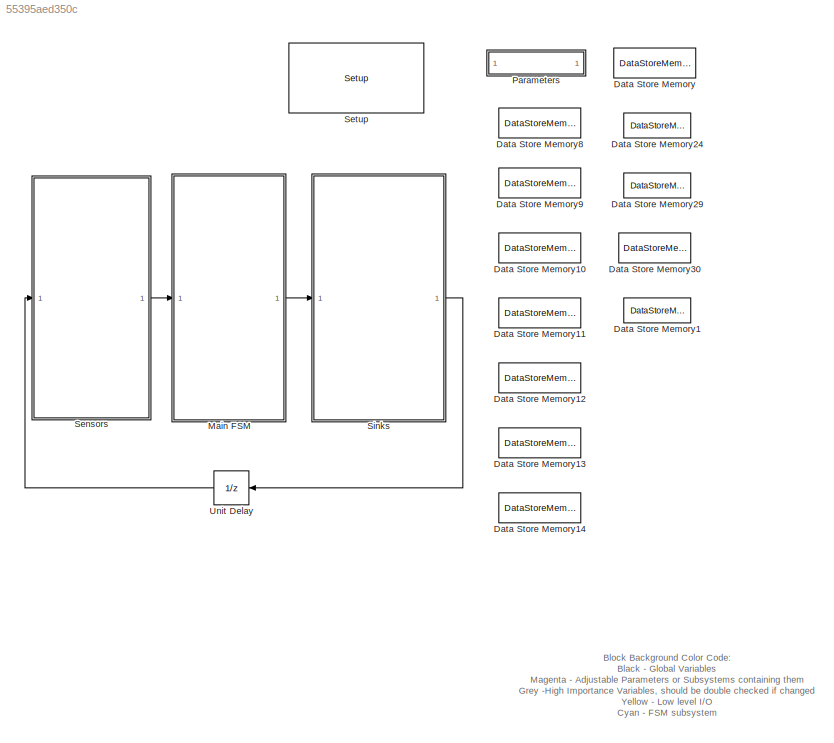
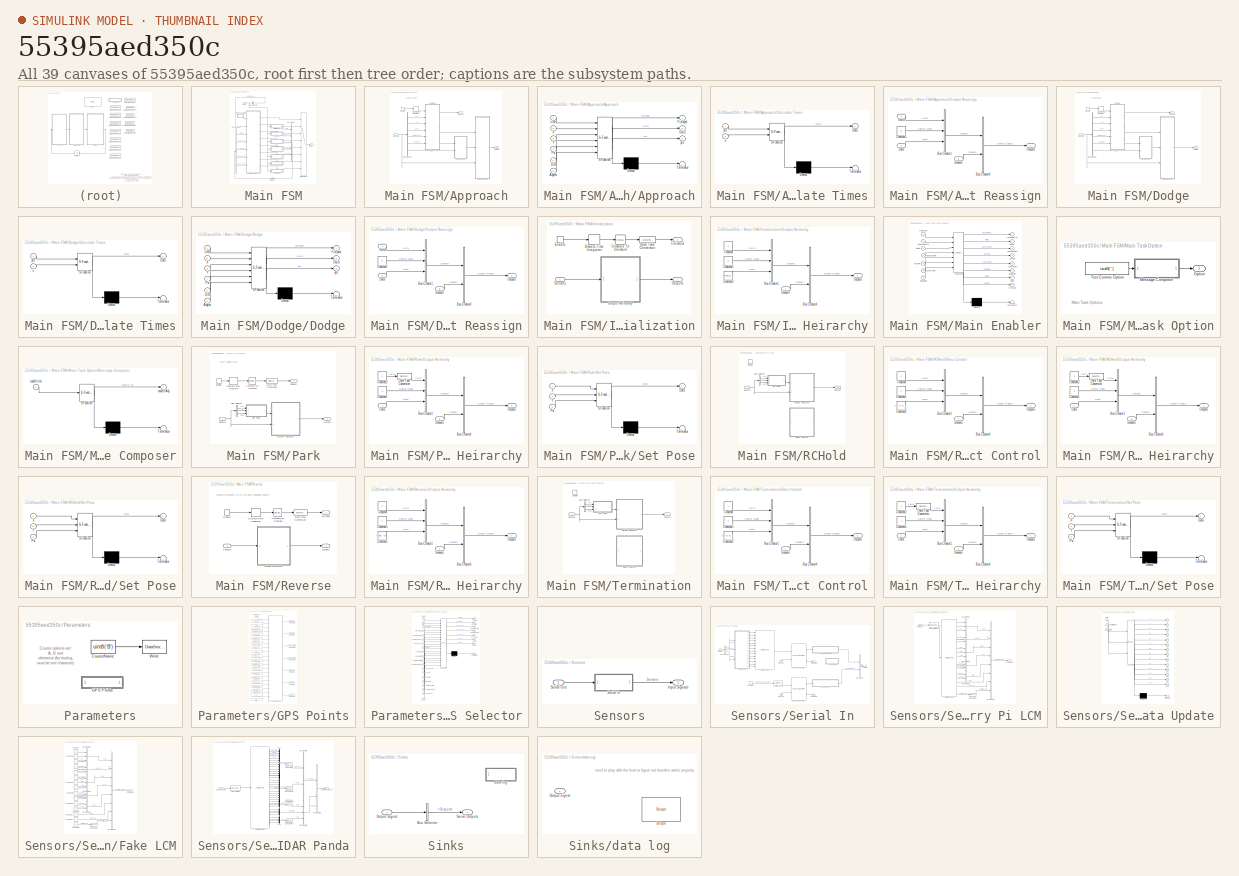
[diagram: thumbnail index - all 39 canvases of the model, root first then tree order]
MODEL slx_55395aed350c
KIND model
BLOCK [DataStoreMemory] Data Store Memory
  DataStoreName = Course
  ReadBeforeWriteMsg = warning
  WriteAfterReadMsg = warning
  WriteAfterWriteMsg = warning
BLOCK [DataStoreMemory] Data Store Memory1
  DataStoreName = dockBay
  ReadBeforeWriteMsg = warning
  WriteAfterReadMsg = warning
  WriteAfterWriteMsg = warning
BLOCK [DataStoreMemory] Data Store Memory10
  DataStoreName = obstNavStartGPS
  InitialValue = zeros(1,2)
  ReadBeforeWriteMsg = warning
  WriteAfterReadMsg = warning
  WriteAfterWriteMsg = warning
BLOCK [DataStoreMemory] Data Store Memory11
  DataStoreName = obstNavEndGPS
  InitialValue = zeros(1,2)
  ReadBeforeWriteMsg = warning
  WriteAfterReadMsg = warning
  WriteAfterWriteMsg = warning
BLOCK [DataStoreMemory] Data Store Memory12
  DataStoreName = acouLocGPS
  InitialValue = zeros(1,2)
  ReadBeforeWriteMsg = warning
  WriteAfterReadMsg = warning
  WriteAfterWriteMsg = warning
BLOCK [DataStoreMemory] Data Store Memory13
  DataStoreName = dockGPS
  InitialValue = zeros(1,2)
  ReadBeforeWriteMsg = warning
  WriteAfterReadMsg = warning
  WriteAfterWriteMsg = warning
BLOCK [DataStoreMemory] Data Store Memory14
  DataStoreName = returnGPS
  InitialValue = zeros(1,2)
  ReadBeforeWriteMsg = warning
  WriteAfterReadMsg = warning
  WriteAfterWriteMsg = warning
BLOCK [DataStoreMemory] Data Store Memory24
  DataStoreName = enterGate
  ReadBeforeWriteMsg = warning
  WriteAfterReadMsg = warning
  WriteAfterWriteMsg = warning
BLOCK [DataStoreMemory] Data Store Memory29
  DataStoreName = exitGate
  ReadBeforeWriteMsg = warning
  WriteAfterReadMsg = warning
  WriteAfterWriteMsg = warning
BLOCK [DataStoreMemory] Data Store Memory30
  DataStoreName = dodgeStart
  ReadBeforeWriteMsg = warning
  WriteAfterReadMsg = warning
  WriteAfterWriteMsg = warning
BLOCK [DataStoreMemory] Data Store Memory8
  DataStoreName = ssGateGPS
  InitialValue = zeros(1,2)
  ReadBeforeWriteMsg = warning
  WriteAfterReadMsg = warning
  WriteAfterWriteMsg = warning
BLOCK [DataStoreMemory] Data Store Memory9
  DataStoreName = transWpt
  InitialValue = zeros(1,2)
  ReadBeforeWriteMsg = warning
  WriteAfterReadMsg = warning
  WriteAfterWriteMsg = warning
BLOCK [SubSystem] Main FSM
  Ports = [1, 1]
  RequestExecContextInheritance = off
BLOCK [SubSystem] Main FSM/Approach
  Ports = [1, 2, 1]
  RequestExecContextInheritance = off
  TreatAsAtomicUnit = on
BLOCK [SubSystem] Main FSM/Approach/Approach
  ErrorFcn = Stateflow.Translate.translate
  PermitHierarchicalResolution = ExplicitOnly
  Ports = [6, 3]
  RequestExecContextInheritance = off
  SFBlockType = MATLAB Function
  TreatAsAtomicUnit = on
BLOCK [Demux] Main FSM/Approach/Approach/ Demux 
  Outputs = 1
  Ports = [1, 1]
BLOCK [S-Function] Main FSM/Approach/Approach/ SFunction 
  EnableBusSupport = on
  FunctionName = sf_sfun
  PortCounts = [6 4]
  Ports = [6, 4]
  Tag = Stateflow S-Function RobotX_August9 5
BLOCK [Terminator] Main FSM/Approach/Approach/ Terminator 
BLOCK [Inport] Main FSM/Approach/Approach/Angles
  IconDisplay = Port number
  Port = 6
BLOCK [Inport] Main FSM/Approach/Approach/Dist
  IconDisplay = Port number
  Port = 5
BLOCK [Outport] Main FSM/Approach/Approach/Finished
  IconDisplay = Port number
BLOCK [Inport] Main FSM/Approach/Approach/Psi
  IconDisplay = Port number
  Port = 4
BLOCK [Outport] Main FSM/Approach/Approach/Valid
  IconDisplay = Port number
  Port = 2
BLOCK [Inport] Main FSM/Approach/Approach/X
  IconDisplay = Port number
  Port = 2
BLOCK [Inport] Main FSM/Approach/Approach/Y
  IconDisplay = Port number
  Port = 3
BLOCK [Outport] Main FSM/Approach/Approach/pts
  IconDisplay = Port number
  Port = 3
BLOCK [Inport] Main FSM/Approach/Approach/time
  IconDisplay = Port number
BLOCK [BusSelector] Main FSM/Approach/Bus Selector
  OutputSignals = LCM Message.Pose.X,LCM Message.Pose.Y,LCM Message.Pose.Psi,Lidar Data Input.Landmarks.Distances,Lidar Data Input.Landmarks.Angles,LCM Message.Velocity.u
  Ports = [1, 6]
BLOCK [SubSystem] Main FSM/Approach/Calculate Times
  ErrorFcn = Stateflow.Translate.translate
  PermitHierarchicalResolution = ExplicitOnly
  Ports = [2, 1]
  RequestExecContextInheritance = off
  SFBlockType = MATLAB Function
  TreatAsAtomicUnit = on
BLOCK [Demux] Main FSM/Approach/Calculate Times/ Demux 
  Outputs = 1
  Ports = [1, 1]
BLOCK [S-Function] Main FSM/Approach/Calculate Times/ SFunction 
  EnableBusSupport = on
  FunctionName = sf_sfun
  PortCounts = [2 2]
  Ports = [2, 2]
  Tag = Stateflow S-Function RobotX_August9 6
BLOCK [Terminator] Main FSM/Approach/Calculate Times/ Terminator 
BLOCK [Outport] Main FSM/Approach/Calculate Times/Data
  IconDisplay = Port number
BLOCK [Inport] Main FSM/Approach/Calculate Times/pts
  IconDisplay = Port number
BLOCK [Inport] Main FSM/Approach/Calculate Times/u
  IconDisplay = Port number
  Port = 2
BLOCK [DiscreteIntegrator] Main FSM/Approach/Discrete-Time Integrator
  ICPrevOutput = DiscIntNeverNeededParam
  ICPrevScaledInput = DiscIntNeverNeededParam
  Ports = [1, 1]
  SampleTime = 0.1
BLOCK [EnablePort] Main FSM/Approach/Enable
  Ports = [0, 1]
  ShowOutputPort = on
BLOCK [Outport] Main FSM/Approach/Finished
  IconDisplay = Port number
  Port = 2
BLOCK [SubSystem] Main FSM/Approach/Output Reassign
  Ports = [3, 1]
  RequestExecContextInheritance = off
BLOCK [BusCreator] Main FSM/Approach/Output Reassign/Bus Creator1
  DisplayOption = bar
  Inputs = 3
  Ports = [3, 1]
BLOCK [BusCreator] Main FSM/Approach/Output Reassign/Bus Creator4
  DisplayOption = bar
  Inputs = 2
  Ports = [2, 1]
BLOCK [Constant] Main FSM/Approach/Output Reassign/Constant1
  Value = 0
BLOCK [Inport] Main FSM/Approach/Output Reassign/Data
  IconDisplay = Port number
  Port = 2
BLOCK [Outport] Main FSM/Approach/Output Reassign/Outputs
  IconDisplay = Port number
BLOCK [Inport] Main FSM/Approach/Output Reassign/Sensors
  IconDisplay = Port number
  Port = 3
BLOCK [Inport] Main FSM/Approach/Output Reassign/Vaild
  IconDisplay = Port number
BLOCK [Outport] Main FSM/Approach/Outputs
  IconDisplay = Port number
BLOCK [Inport] Main FSM/Approach/Sensors
  IconDisplay = Port number
BLOCK [BusCreator] Main FSM/Bus Creator
  DisplayOption = bar
  Inputs = 5
  Ports = [5, 1]
BLOCK [BusSelector] Main FSM/Bus Selector1
  OutputSignals = Init Fin,Approach Fin,Park Fin,Reverse Fin,Dodge Fin
  Ports = [1, 5]
BLOCK [BusSelector] Main FSM/Bus Selector2
  OutputSignals = LCM Message.On/Off/RC/Auto
  Ports = [1, 1]
BLOCK [SubSystem] Main FSM/Dodge
  Ports = [1, 2, 1]
  RequestExecContextInheritance = off
  TreatAsAtomicUnit = on
BLOCK [BusSelector] Main FSM/Dodge/Bus Selector
  OutputSignals = LCM Message.Pose.X,LCM Message.Pose.Y,LCM Message.Pose.Psi,Lidar Data Input.Landmarks.Distances,Lidar Data Input.Landmarks.Angles,LCM Message.Velocity.u
  Ports = [1, 6]
BLOCK [SubSystem] Main FSM/Dodge/Calculate Times
  ErrorFcn = Stateflow.Translate.translate
  PermitHierarchicalResolution = ExplicitOnly
  Ports = [2, 1]
  RequestExecContextInheritance = off
  SFBlockType = MATLAB Function
  TreatAsAtomicUnit = on
BLOCK [Demux] Main FSM/Dodge/Calculate Times/ Demux 
  Outputs = 1
  Ports = [1, 1]
BLOCK [S-Function] Main FSM/Dodge/Calculate Times/ SFunction 
  EnableBusSupport = on
  FunctionName = sf_sfun
  PortCounts = [2 2]
  Ports = [2, 2]
  Tag = Stateflow S-Function RobotX_August9 7
BLOCK [Terminator] Main FSM/Dodge/Calculate Times/ Terminator 
BLOCK [Outport] Main FSM/Dodge/Calculate Times/Data
  IconDisplay = Port number
BLOCK [Inport] Main FSM/Dodge/Calculate Times/pts
  IconDisplay = Port number
BLOCK [Inport] Main FSM/Dodge/Calculate Times/u
  IconDisplay = Port number
  Port = 2
BLOCK [DiscreteIntegrator] Main FSM/Dodge/Discrete-Time Integrator
  ICPrevOutput = DiscIntNeverNeededParam
  ICPrevScaledInput = DiscIntNeverNeededParam
  Ports = [1, 1]
  SampleTime = 0.1
BLOCK [SubSystem] Main FSM/Dodge/Dodge
  ErrorFcn = Stateflow.Translate.translate
  PermitHierarchicalResolution = ExplicitOnly
  Ports = [6, 3]
  RequestExecContextInheritance = off
  SFBlockType = MATLAB Function
  TreatAsAtomicUnit = on
BLOCK [Demux] Main FSM/Dodge/Dodge/ Demux 
  Outputs = 1
  Ports = [1, 1]
BLOCK [S-Function] Main FSM/Dodge/Dodge/ SFunction 
  EnableBusSupport = on
  FunctionName = sf_sfun
  PortCounts = [6 4]
  Ports = [6, 4]
  Tag = Stateflow S-Function RobotX_August9 4
BLOCK [Terminator] Main FSM/Dodge/Dodge/ Terminator 
BLOCK [Inport] Main FSM/Dodge/Dodge/Angles
  IconDisplay = Port number
  Port = 6
BLOCK [Inport] Main FSM/Dodge/Dodge/Dist
  IconDisplay = Port number
  Port = 5
BLOCK [Outport] Main FSM/Dodge/Dodge/Finished
  IconDisplay = Port number
BLOCK [Inport] Main FSM/Dodge/Dodge/Psi
  IconDisplay = Port number
  Port = 4
BLOCK [Outport] Main FSM/Dodge/Dodge/Valid
  IconDisplay = Port number
  Port = 2
BLOCK [Inport] Main FSM/Dodge/Dodge/X
  IconDisplay = Port number
  Port = 2
BLOCK [Inport] Main FSM/Dodge/Dodge/Y
  IconDisplay = Port number
  Port = 3
BLOCK [Outport] Main FSM/Dodge/Dodge/pts
  IconDisplay = Port number
  Port = 3
BLOCK [Inport] Main FSM/Dodge/Dodge/time
  IconDisplay = Port number
BLOCK [EnablePort] Main FSM/Dodge/Enable
  Ports = [0, 1]
  ShowOutputPort = on
BLOCK [Outport] Main FSM/Dodge/Finished
  IconDisplay = Port number
  Port = 2
BLOCK [SubSystem] Main FSM/Dodge/Output Reassign
  Ports = [3, 1]
  RequestExecContextInheritance = off
BLOCK [BusCreator] Main FSM/Dodge/Output Reassign/Bus Creator1
  DisplayOption = bar
  Inputs = 3
  Ports = [3, 1]
BLOCK [BusCreator] Main FSM/Dodge/Output Reassign/Bus Creator4
  DisplayOption = bar
  Inputs = 2
  Ports = [2, 1]
BLOCK [Constant] Main FSM/Dodge/Output Reassign/Constant1
  Value = 0
BLOCK [Inport] Main FSM/Dodge/Output Reassign/Data
  IconDisplay = Port number
  Port = 2
BLOCK [Outport] Main FSM/Dodge/Output Reassign/Outputs
  IconDisplay = Port number
BLOCK [Inport] Main FSM/Dodge/Output Reassign/Sensors
  IconDisplay = Port number
  Port = 3
BLOCK [Inport] Main FSM/Dodge/Output Reassign/Vaild
  IconDisplay = Port number
BLOCK [Outport] Main FSM/Dodge/Outputs
  IconDisplay = Port number
BLOCK [Inport] Main FSM/Dodge/Sensors
  IconDisplay = Port number
BLOCK [SubSystem] Main FSM/Initialization
  Ports = [1, 2, 1]
  RequestExecContextInheritance = off
BLOCK [Reference] Main FSM/Initialization/Compare To Constant  REF=simulink/Logic and Bit
Operations/Compare
To Constant
  OutDataTypeStr = boolean
  Ports = [1, 1]
  SourceBlock = simulink/Logic and Bit\nOperations/Compare\nTo Constant
  SourceType = Compare To Constant
  ZeroCross = on
  const = 50
  relop = >=
BLOCK [DataTypeConversion] Main FSM/Initialization/Data Type Conversion
  OutDataTypeStr = double
  RndMeth = Floor
  SaturateOnIntegerOverflow = off
BLOCK [DiscreteIntegrator] Main FSM/Initialization/Discrete-Time Integrator
  ICPrevOutput = DiscIntNeverNeededParam
  ICPrevScaledInput = DiscIntNeverNeededParam
  Ports = [1, 1]
  SampleTime = 0.1
BLOCK [EnablePort] Main FSM/Initialization/Enable
  Ports = [0, 1]
  ShowOutputPort = on
BLOCK [Outport] Main FSM/Initialization/Finished
  IconDisplay = Port number
  Port = 2
BLOCK [SubSystem] Main FSM/Initialization/Output Heirarchy
  Ports = [1, 1]
  RequestExecContextInheritance = off
BLOCK [BusCreator] Main FSM/Initialization/Output Heirarchy/Bus Creator1
  DisplayOption = bar
  Inputs = 3
  Ports = [3, 1]
BLOCK [BusCreator] Main FSM/Initialization/Output Heirarchy/Bus Creator4
  DisplayOption = bar
  Inputs = 2
  Ports = [2, 1]
BLOCK [Constant] Main FSM/Initialization/Output Heirarchy/Constant
  Value = 0
BLOCK [Constant] Main FSM/Initialization/Output Heirarchy/Constant1
  Value = 0
BLOCK [Constant] Main FSM/Initialization/Output Heirarchy/Constant2
  Value = zeros(12,1)
BLOCK [Outport] Main FSM/Initialization/Output Heirarchy/Outputs
  IconDisplay = Port number
BLOCK [Inport] Main FSM/Initialization/Output Heirarchy/Sensors
  IconDisplay = Port number
BLOCK [Outport] Main FSM/Initialization/Outputs
  IconDisplay = Port number
BLOCK [Inport] Main FSM/Initialization/Sensors
  IconDisplay = Port number
BLOCK [Inport] Main FSM/Input
  IconDisplay = Port number
BLOCK [SubSystem] Main FSM/Main Enabler
  ErrorFcn = Stateflow.Translate.translate
  PermitHierarchicalResolution = ExplicitOnly
  Ports = [7, 8]
  RequestExecContextInheritance = off
  SFBlockType = MATLAB Function
  TreatAsAtomicUnit = on
BLOCK [Demux] Main FSM/Main Enabler/ Demux 
  Outputs = 1
  Ports = [1, 1]
BLOCK [S-Function] Main FSM/Main Enabler/ SFunction 
  EnableBusSupport = on
  FunctionName = sf_sfun
  PortCounts = [7 9]
  Ports = [7, 9]
  Tag = Stateflow S-Function RobotX_August9 1
BLOCK [Terminator] Main FSM/Main Enabler/ Terminator 
BLOCK [Inport] Main FSM/Main Enabler/OnOffRCAuto
  IconDisplay = Port number
  Port = 2
BLOCK [Outport] Main FSM/Main Enabler/RCEn
  IconDisplay = Port number
  Port = 7
BLOCK [Outport] Main FSM/Main Enabler/approachEn
  IconDisplay = Port number
  Port = 3
BLOCK [Inport] Main FSM/Main Enabler/approachFin
  IconDisplay = Port number
  Port = 4
BLOCK [Outport] Main FSM/Main Enabler/dodgeEn
  IconDisplay = Port number
  Port = 6
BLOCK [Inport] Main FSM/Main Enabler/dodgeFin
  IconDisplay = Port number
  Port = 7
BLOCK [Outport] Main FSM/Main Enabler/initEn
  IconDisplay = Port number
  Port = 2
BLOCK [Inport] Main FSM/Main Enabler/initFin
  IconDisplay = Port number
  Port = 3
BLOCK [Inport] Main FSM/Main Enabler/mainTask
  IconDisplay = Port number
BLOCK [Outport] Main FSM/Main Enabler/parkEn
  IconDisplay = Port number
  Port = 4
BLOCK [Inport] Main FSM/Main Enabler/parkFin
  IconDisplay = Port number
  Port = 5
BLOCK [Outport] Main FSM/Main Enabler/reverseEn
  IconDisplay = Port number
  Port = 5
BLOCK [Inport] Main FSM/Main Enabler/reverseFin
  IconDisplay = Port number
  Port = 6
BLOCK [Outport] Main FSM/Main Enabler/taskSelector
  IconDisplay = Port number
BLOCK [Outport] Main FSM/Main Enabler/termEn
  IconDisplay = Port number
  Port = 8
BLOCK [SubSystem] Main FSM/Main Task Option
  Ports = [0, 1]
  RequestExecContextInheritance = off
BLOCK [SubSystem] Main FSM/Main Task Option/Message Composer
  ErrorFcn = Stateflow.Translate.translate
  PermitHierarchicalResolution = ExplicitOnly
  Ports = [1, 1]
  RequestExecContextInheritance = off
  SFBlockType = MATLAB Function
  TreatAsAtomicUnit = on
BLOCK [Demux] Main FSM/Main Task Option/Message Composer/ Demux 
  Outputs = 1
  Ports = [1, 1]
BLOCK [S-Function] Main FSM/Main Task Option/Message Composer/ SFunction 
  EnableBusSupport = on
  FunctionName = sf_sfun
  PortCounts = [1 2]
  Ports = [1, 2]
  Tag = Stateflow S-Function RobotX_August9 48
BLOCK [Terminator] Main FSM/Main Task Option/Message Composer/ Terminator 
BLOCK [Outport] Main FSM/Main Task Option/Message Composer/taskStrAdj
  IconDisplay = Port number
BLOCK [Inport] Main FSM/Main Task Option/Message Composer/taskStrInit
  IconDisplay = Port number
BLOCK [Outport] Main FSM/Main Task Option/Option
  IconDisplay = Port number
BLOCK [Constant] Main FSM/Main Task Option/Test Comms Option
  SampleTime = 0.1
  Value = uint8(' ')
BLOCK [MultiPortSwitch] Main FSM/Multiport Switch
  InputSameDT = off
  Inputs = 7
  Ports = [8, 1]
  SaturateOnIntegerOverflow = off
BLOCK [Outport] Main FSM/Output
  IconDisplay = Port number
BLOCK [SubSystem] Main FSM/Park
  Ports = [1, 2, 1]
  RequestExecContextInheritance = off
  TreatAsAtomicUnit = on
BLOCK [BusSelector] Main FSM/Park/Bus Selector
  OutputSignals = LCM Message.Pose.X,LCM Message.Pose.Y,LCM Message.Pose.Psi
  Ports = [1, 3]
BLOCK [Reference] Main FSM/Park/Compare To Constant  REF=simulink/Logic and Bit
Operations/Compare
To Constant
  OutDataTypeStr = boolean
  Ports = [1, 1]
  SourceBlock = simulink/Logic and Bit\nOperations/Compare\nTo Constant
  SourceType = Compare To Constant
  ZeroCross = on
  const = 45
  relop = >=
BLOCK [DataTypeConversion] Main FSM/Park/Data Type Conversion
  OutDataTypeStr = double
  RndMeth = Floor
  SaturateOnIntegerOverflow = off
BLOCK [DiscreteIntegrator] Main FSM/Park/Discrete-Time Integrator
  ICPrevOutput = DiscIntNeverNeededParam
  ICPrevScaledInput = DiscIntNeverNeededParam
  Ports = [1, 1]
  SampleTime = 0.1
BLOCK [EnablePort] Main FSM/Park/Enable
  Ports = [0, 1]
  ShowOutputPort = on
BLOCK [Outport] Main FSM/Park/Finished
  IconDisplay = Port number
  Port = 2
BLOCK [SubSystem] Main FSM/Park/Output Heirarchy
  Ports = [2, 1]
  RequestExecContextInheritance = off
BLOCK [BusCreator] Main FSM/Park/Output Heirarchy/Bus Creator1
  DisplayOption = bar
  Inputs = 3
  Ports = [3, 1]
BLOCK [BusCreator] Main FSM/Park/Output Heirarchy/Bus Creator4
  DisplayOption = bar
  Inputs = 2
  Ports = [2, 1]
BLOCK [Constant] Main FSM/Park/Output Heirarchy/Constant1
BLOCK [Constant] Main FSM/Park/Output Heirarchy/Constant2
BLOCK [Inport] Main FSM/Park/Output Heirarchy/Data
  IconDisplay = Port number
BLOCK [DataTypeConversion] Main FSM/Park/Output Heirarchy/Data Type Conversion
  OutDataTypeStr = double
  RndMeth = Floor
  SaturateOnIntegerOverflow = off
BLOCK [Outport] Main FSM/Park/Output Heirarchy/Outputs
  IconDisplay = Port number
BLOCK [Inport] Main FSM/Park/Output Heirarchy/Sensors
  IconDisplay = Port number
  Port = 2
BLOCK [Outport] Main FSM/Park/Outputs
  IconDisplay = Port number
BLOCK [Inport] Main FSM/Park/Sensors
  IconDisplay = Port number
BLOCK [SubSystem] Main FSM/Park/Set Pose
  ErrorFcn = Stateflow.Translate.translate
  PermitHierarchicalResolution = ExplicitOnly
  Ports = [3, 1]
  RequestExecContextInheritance = off
  SFBlockType = MATLAB Function
  TreatAsAtomicUnit = on
BLOCK [Demux] Main FSM/Park/Set Pose/ Demux 
  Outputs = 1
  Ports = [1, 1]
BLOCK [S-Function] Main FSM/Park/Set Pose/ SFunction 
  EnableBusSupport = on
  FunctionName = sf_sfun
  PortCounts = [3 2]
  Ports = [3, 2]
  Tag = Stateflow S-Function RobotX_August9 2
BLOCK [Terminator] Main FSM/Park/Set Pose/ Terminator 
BLOCK [Outport] Main FSM/Park/Set Pose/Data
  IconDisplay = Port number
BLOCK [Inport] Main FSM/Park/Set Pose/Psi
  IconDisplay = Port number
  Port = 3
BLOCK [Inport] Main FSM/Park/Set Pose/X
  IconDisplay = Port number
BLOCK [Inport] Main FSM/Park/Set Pose/Y
  IconDisplay = Port number
  Port = 2
BLOCK [SubSystem] Main FSM/RCHold
  Ports = [1, 1, 1]
  RequestExecContextInheritance = off
BLOCK [BusSelector] Main FSM/RCHold/Bus Selector
  OutputSignals = LCM Message.Pose.X,LCM Message.Pose.Y,LCM Message.Pose.Psi
  Ports = [1, 3]
BLOCK [SubSystem] Main FSM/RCHold/Direct Control
  Commented = on
  Ports = [1, 1]
  RequestExecContextInheritance = off
BLOCK [BusCreator] Main FSM/RCHold/Direct Control/Bus Creator1
  DisplayOption = bar
  Inputs = 3
  Ports = [3, 1]
BLOCK [BusCreator] Main FSM/RCHold/Direct Control/Bus Creator4
  DisplayOption = bar
  Inputs = 2
  Ports = [2, 1]
BLOCK [Constant] Main FSM/RCHold/Direct Control/Constant
BLOCK [Constant] Main FSM/RCHold/Direct Control/Constant1
  Value = 2
BLOCK [Constant] Main FSM/RCHold/Direct Control/Constant2
  Value = [0; 0; 0; 0; 0; 0; 0; 0; 0; 0; 0; 0]
BLOCK [Outport] Main FSM/RCHold/Direct Control/Outputs
  IconDisplay = Port number
BLOCK [Inport] Main FSM/RCHold/Direct Control/Sensors
  IconDisplay = Port number
BLOCK [EnablePort] Main FSM/RCHold/Enable
  Ports = []
BLOCK [SubSystem] Main FSM/RCHold/Output Heirarchy
  Ports = [2, 1]
  RequestExecContextInheritance = off
BLOCK [BusCreator] Main FSM/RCHold/Output Heirarchy/Bus Creator1
  DisplayOption = bar
  Inputs = 3
  Ports = [3, 1]
BLOCK [BusCreator] Main FSM/RCHold/Output Heirarchy/Bus Creator4
  DisplayOption = bar
  Inputs = 2
  Ports = [2, 1]
BLOCK [Constant] Main FSM/RCHold/Output Heirarchy/Constant1
BLOCK [Constant] Main FSM/RCHold/Output Heirarchy/Constant2
BLOCK [Inport] Main FSM/RCHold/Output Heirarchy/Data
  IconDisplay = Port number
BLOCK [DataTypeConversion] Main FSM/RCHold/Output Heirarchy/Data Type Conversion
  OutDataTypeStr = double
  RndMeth = Floor
  SaturateOnIntegerOverflow = off
BLOCK [Outport] Main FSM/RCHold/Output Heirarchy/Outputs
  IconDisplay = Port number
BLOCK [Inport] Main FSM/RCHold/Output Heirarchy/Sensors
  IconDisplay = Port number
  Port = 2
BLOCK [Outport] Main FSM/RCHold/Outputs
  IconDisplay = Port number
BLOCK [Inport] Main FSM/RCHold/Sensors
  IconDisplay = Port number
BLOCK [SubSystem] Main FSM/RCHold/Set Pose
  ErrorFcn = Stateflow.Translate.translate
  PermitHierarchicalResolution = ExplicitOnly
  Ports = [3, 1]
  RequestExecContextInheritance = off
  SFBlockType = MATLAB Function
  TreatAsAtomicUnit = on
BLOCK [Demux] Main FSM/RCHold/Set Pose/ Demux 
  Outputs = 1
  Ports = [1, 1]
BLOCK [S-Function] Main FSM/RCHold/Set Pose/ SFunction 
  EnableBusSupport = on
  FunctionName = sf_sfun
  PortCounts = [3 2]
  Ports = [3, 2]
  Tag = Stateflow S-Function RobotX_August9 8
BLOCK [Terminator] Main FSM/RCHold/Set Pose/ Terminator 
BLOCK [Outport] Main FSM/RCHold/Set Pose/Data
  IconDisplay = Port number
BLOCK [Inport] Main FSM/RCHold/Set Pose/Psi
  IconDisplay = Port number
  Port = 3
BLOCK [Inport] Main FSM/RCHold/Set Pose/X
  IconDisplay = Port number
BLOCK [Inport] Main FSM/RCHold/Set Pose/Y
  IconDisplay = Port number
  Port = 2
BLOCK [SubSystem] Main FSM/Reverse
  Ports = [1, 2, 1]
  RequestExecContextInheritance = off
  TreatAsAtomicUnit = on
BLOCK [Reference] Main FSM/Reverse/Compare To Constant  REF=simulink/Logic and Bit
Operations/Compare
To Constant
  OutDataTypeStr = boolean
  Ports = [1, 1]
  SourceBlock = simulink/Logic and Bit\nOperations/Compare\nTo Constant
  SourceType = Compare To Constant
  ZeroCross = on
  const = 10
  relop = >=
BLOCK [DataTypeConversion] Main FSM/Reverse/Data Type Conversion
  OutDataTypeStr = double
  RndMeth = Floor
  SaturateOnIntegerOverflow = off
BLOCK [DiscreteIntegrator] Main FSM/Reverse/Discrete-Time Integrator
  ICPrevOutput = DiscIntNeverNeededParam
  ICPrevScaledInput = DiscIntNeverNeededParam
  Ports = [1, 1]
  SampleTime = 0.1
BLOCK [EnablePort] Main FSM/Reverse/Enable
  Ports = [0, 1]
  ShowOutputPort = on
BLOCK [Outport] Main FSM/Reverse/Finished
  IconDisplay = Port number
  Port = 2
BLOCK [SubSystem] Main FSM/Reverse/Output Heirarchy
  Ports = [1, 1]
  RequestExecContextInheritance = off
BLOCK [BusCreator] Main FSM/Reverse/Output Heirarchy/Bus Creator1
  DisplayOption = bar
  Inputs = 3
  Ports = [3, 1]
BLOCK [BusCreator] Main FSM/Reverse/Output Heirarchy/Bus Creator4
  DisplayOption = bar
  Inputs = 2
  Ports = [2, 1]
BLOCK [Constant] Main FSM/Reverse/Output Heirarchy/Constant
BLOCK [Constant] Main FSM/Reverse/Output Heirarchy/Constant1
  Value = 2
BLOCK [Constant] Main FSM/Reverse/Output Heirarchy/Constant2
  Value = [-100; -100; 0; 0; 0; 0; 0; 0; 0; 0; 0; 0]
BLOCK [Outport] Main FSM/Reverse/Output Heirarchy/Outputs
  IconDisplay = Port number
BLOCK [Inport] Main FSM/Reverse/Output Heirarchy/Sensors
  IconDisplay = Port number
BLOCK [Outport] Main FSM/Reverse/Outputs
  IconDisplay = Port number
BLOCK [Inport] Main FSM/Reverse/Sensors
  IconDisplay = Port number
BLOCK [SubSystem] Main FSM/Termination
  Ports = [1, 1, 1]
  RequestExecContextInheritance = off
  TreatAsAtomicUnit = on
BLOCK [BusSelector] Main FSM/Termination/Bus Selector
  OutputSignals = LCM Message.Pose.X,LCM Message.Pose.Y,LCM Message.Pose.Psi
  Ports = [1, 3]
BLOCK [SubSystem] Main FSM/Termination/Direct Control
  Commented = on
  Ports = [1, 1]
  RequestExecContextInheritance = off
BLOCK [BusCreator] Main FSM/Termination/Direct Control/Bus Creator1
  DisplayOption = bar
  Inputs = 3
  Ports = [3, 1]
BLOCK [BusCreator] Main FSM/Termination/Direct Control/Bus Creator4
  DisplayOption = bar
  Inputs = 2
  Ports = [2, 1]
BLOCK [Constant] Main FSM/Termination/Direct Control/Constant
BLOCK [Constant] Main FSM/Termination/Direct Control/Constant1
  Value = 2
BLOCK [Constant] Main FSM/Termination/Direct Control/Constant2
  Value = [0; 0; 0; 0; 0; 0; 0; 0; 0; 0; 0; 0]
BLOCK [Outport] Main FSM/Termination/Direct Control/Outputs
  IconDisplay = Port number
BLOCK [Inport] Main FSM/Termination/Direct Control/Sensors
  IconDisplay = Port number
BLOCK [EnablePort] Main FSM/Termination/Enable
  Ports = []
BLOCK [SubSystem] Main FSM/Termination/Output Heirarchy
  Ports = [2, 1]
  RequestExecContextInheritance = off
BLOCK [BusCreator] Main FSM/Termination/Output Heirarchy/Bus Creator1
  DisplayOption = bar
  Inputs = 3
  Ports = [3, 1]
BLOCK [BusCreator] Main FSM/Termination/Output Heirarchy/Bus Creator4
  DisplayOption = bar
  Inputs = 2
  Ports = [2, 1]
BLOCK [Constant] Main FSM/Termination/Output Heirarchy/Constant1
BLOCK [Constant] Main FSM/Termination/Output Heirarchy/Constant2
BLOCK [Inport] Main FSM/Termination/Output Heirarchy/Data
  IconDisplay = Port number
BLOCK [DataTypeConversion] Main FSM/Termination/Output Heirarchy/Data Type Conversion
  OutDataTypeStr = double
  RndMeth = Floor
  SaturateOnIntegerOverflow = off
BLOCK [Outport] Main FSM/Termination/Output Heirarchy/Outputs
  IconDisplay = Port number
BLOCK [Inport] Main FSM/Termination/Output Heirarchy/Sensors
  IconDisplay = Port number
  Port = 2
BLOCK [Outport] Main FSM/Termination/Outputs
  IconDisplay = Port number
BLOCK [Inport] Main FSM/Termination/Sensors
  IconDisplay = Port number
BLOCK [SubSystem] Main FSM/Termination/Set Pose
  ErrorFcn = Stateflow.Translate.translate
  PermitHierarchicalResolution = ExplicitOnly
  Ports = [3, 1]
  RequestExecContextInheritance = off
  SFBlockType = MATLAB Function
  TreatAsAtomicUnit = on
BLOCK [Demux] Main FSM/Termination/Set Pose/ Demux 
  Outputs = 1
  Ports = [1, 1]
BLOCK [S-Function] Main FSM/Termination/Set Pose/ SFunction 
  EnableBusSupport = on
  FunctionName = sf_sfun
  PortCounts = [3 2]
  Ports = [3, 2]
  Tag = Stateflow S-Function RobotX_August9 9
BLOCK [Terminator] Main FSM/Termination/Set Pose/ Terminator 
BLOCK [Outport] Main FSM/Termination/Set Pose/Data
  IconDisplay = Port number
BLOCK [Inport] Main FSM/Termination/Set Pose/Psi
  IconDisplay = Port number
  Port = 3
BLOCK [Inport] Main FSM/Termination/Set Pose/X
  IconDisplay = Port number
BLOCK [Inport] Main FSM/Termination/Set Pose/Y
  IconDisplay = Port number
  Port = 2
BLOCK [UnitDelay] Main FSM/Unit Delay
  InputProcessing = Elements as channels (sample based)
  SampleTime = -1
BLOCK [SubSystem] Parameters
  Ports = []
  RequestExecContextInheritance = off
BLOCK [Constant] Parameters/CourseName
  Value = uint8('B')
  VectorParams1D = off
BLOCK [SubSystem] Parameters/GPS Points
  Ports = []
  RequestExecContextInheritance = off
BLOCK [Constant] Parameters/GPS Points/Acoustic Location A
  SampleTime = 0.1
  Value = [3648.1620 -7611.4900]
BLOCK [Constant] Parameters/GPS Points/Acoustic Location B
  SampleTime = 0.1
  Value = [3648.1632 -7611.4882]
BLOCK [Constant] Parameters/GPS Points/Acoustic Location T
  SampleTime = 0.1
  Value = [1,1]
BLOCK [DataStoreRead] Parameters/GPS Points/Data Store Read
  DataStoreName = Course
  DialogController = Simulink.DDGSource
  Ports = [0, 1]
  SampleTime = 0.1
BLOCK [DataStoreWrite] Parameters/GPS Points/Data Store Write
  DataStoreName = ssGateGPS
  DialogController = Simulink.DDGSource
  Ports = [1]
BLOCK [DataStoreWrite] Parameters/GPS Points/Data Store Write1
  DataStoreName = transWpt
  Ports = [1]
BLOCK [DataStoreWrite] Parameters/GPS Points/Data Store Write2
  DataStoreName = obstNavStartGPS
  Ports = [1]
BLOCK [DataStoreWrite] Parameters/GPS Points/Data Store Write3
  DataStoreName = obstNavEndGPS
  Ports = [1]
BLOCK [DataStoreWrite] Parameters/GPS Points/Data Store Write4
  DataStoreName = acouLocGPS
  Ports = [1]
BLOCK [DataStoreWrite] Parameters/GPS Points/Data Store Write5
  DataStoreName = dockGPS
  Ports = [1]
BLOCK [DataStoreWrite] Parameters/GPS Points/Data Store Write6
  DataStoreName = returnGPS
  Ports = [1]
BLOCK [Constant] Parameters/GPS Points/Dock A
  SampleTime = 0.1
  Value = [3648.1350 -7611.4768]
BLOCK [Constant] Parameters/GPS Points/Dock B
  SampleTime = 0.1
  Value = [3648.1044 -7611.5134]
BLOCK [Constant] Parameters/GPS Points/Dock T
  SampleTime = 0.1
  Value = [1,1]
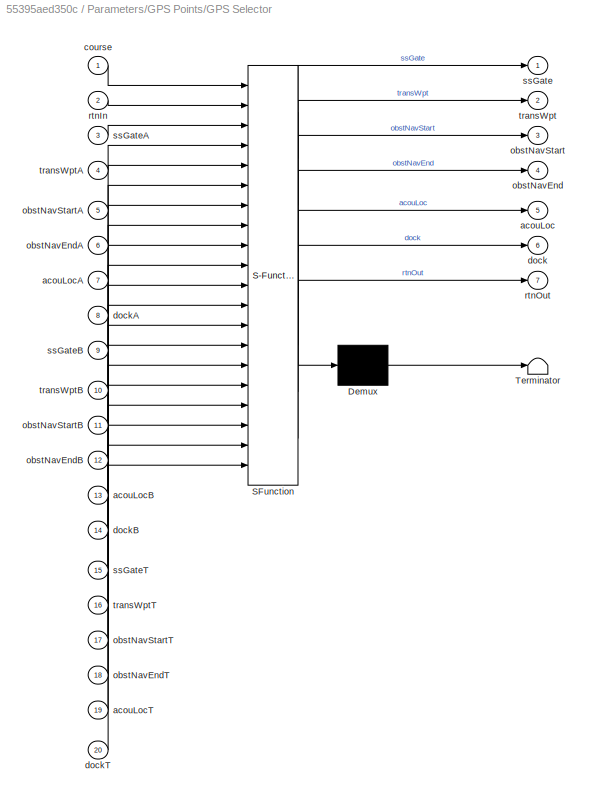
BLOCK [SubSystem] Parameters/GPS Points/GPS Selector
  ErrorFcn = Stateflow.Translate.translate
  PermitHierarchicalResolution = ExplicitOnly
  Ports = [20, 7]
  RequestExecContextInheritance = off
  SFBlockType = MATLAB Function
  TreatAsAtomicUnit = on
BLOCK [Demux] Parameters/GPS Points/GPS Selector/ Demux 
  Outputs = 1
  Ports = [1, 1]
BLOCK [S-Function] Parameters/GPS Points/GPS Selector/ SFunction 
  EnableBusSupport = on
  FunctionName = sf_sfun
  PortCounts = [20 8]
  Ports = [20, 8]
  Tag = Stateflow S-Function RobotX_August9 54
BLOCK [Terminator] Parameters/GPS Points/GPS Selector/ Terminator 
BLOCK [Outport] Parameters/GPS Points/GPS Selector/acouLoc
  IconDisplay = Port number
  Port = 5
BLOCK [Inport] Parameters/GPS Points/GPS Selector/acouLocA
  IconDisplay = Port number
  Port = 7
BLOCK [Inport] Parameters/GPS Points/GPS Selector/acouLocB
  IconDisplay = Port number
  Port = 13
BLOCK [Inport] Parameters/GPS Points/GPS Selector/acouLocT
  IconDisplay = Port number
  Port = 19
BLOCK [Inport] Parameters/GPS Points/GPS Selector/course
  IconDisplay = Port number
BLOCK [Outport] Parameters/GPS Points/GPS Selector/dock
  IconDisplay = Port number
  Port = 6
BLOCK [Inport] Parameters/GPS Points/GPS Selector/dockA
  IconDisplay = Port number
  Port = 8
BLOCK [Inport] Parameters/GPS Points/GPS Selector/dockB
  IconDisplay = Port number
  Port = 14
BLOCK [Inport] Parameters/GPS Points/GPS Selector/dockT
  IconDisplay = Port number
  Port = 20
BLOCK [Outport] Parameters/GPS Points/GPS Selector/obstNavEnd
  IconDisplay = Port number
  Port = 4
BLOCK [Inport] Parameters/GPS Points/GPS Selector/obstNavEndA
  IconDisplay = Port number
  Port = 6
BLOCK [Inport] Parameters/GPS Points/GPS Selector/obstNavEndB
  IconDisplay = Port number
  Port = 12
BLOCK [Inport] Parameters/GPS Points/GPS Selector/obstNavEndT
  IconDisplay = Port number
  Port = 18
BLOCK [Outport] Parameters/GPS Points/GPS Selector/obstNavStart
  IconDisplay = Port number
  Port = 3
BLOCK [Inport] Parameters/GPS Points/GPS Selector/obstNavStartA
  IconDisplay = Port number
  Port = 5
BLOCK [Inport] Parameters/GPS Points/GPS Selector/obstNavStartB
  IconDisplay = Port number
  Port = 11
BLOCK [Inport] Parameters/GPS Points/GPS Selector/obstNavStartT
  IconDisplay = Port number
  Port = 17
BLOCK [Inport] Parameters/GPS Points/GPS Selector/rtnIn
  IconDisplay = Port number
  Port = 2
BLOCK [Outport] Parameters/GPS Points/GPS Selector/rtnOut
  IconDisplay = Port number
  Port = 7
BLOCK [Outport] Parameters/GPS Points/GPS Selector/ssGate
  IconDisplay = Port number
BLOCK [Inport] Parameters/GPS Points/GPS Selector/ssGateA
  IconDisplay = Port number
  Port = 3
BLOCK [Inport] Parameters/GPS Points/GPS Selector/ssGateB
  IconDisplay = Port number
  Port = 9
BLOCK [Inport] Parameters/GPS Points/GPS Selector/ssGateT
  IconDisplay = Port number
  Port = 15
BLOCK [Outport] Parameters/GPS Points/GPS Selector/transWpt
  IconDisplay = Port number
  Port = 2
BLOCK [Inport] Parameters/GPS Points/GPS Selector/transWptA
  IconDisplay = Port number
  Port = 4
BLOCK [Inport] Parameters/GPS Points/GPS Selector/transWptB
  IconDisplay = Port number
  Port = 10
BLOCK [Inport] Parameters/GPS Points/GPS Selector/transWptT
  IconDisplay = Port number
  Port = 16
BLOCK [Constant] Parameters/GPS Points/Obst Nav End A
  SampleTime = 0.1
  Value = [3648.1317 -7611.4962]
BLOCK [Constant] Parameters/GPS Points/Obst Nav End B
  SampleTime = 0.1
  Value = [3648.1182, -7611.5078]
BLOCK [Constant] Parameters/GPS Points/Obst Nav End T
  SampleTime = 0.1
  Value = [3648.14 -7611.5365]
BLOCK [Constant] Parameters/GPS Points/Obst Nav Start A
  SampleTime = 0.1
  Value = [3648.1188 -7611.4774]
BLOCK [Constant] Parameters/GPS Points/Obst Nav Start B
  SampleTime = 0.1
  Value = [3648.1140 -7611.4816]
BLOCK [Constant] Parameters/GPS Points/Obst Nav Start T
  SampleTime = 0.1
  Value = [3648.1381 -7611.6302]
BLOCK [Constant] Parameters/GPS Points/Return
  SampleTime = 0.1
  Value = [3648.1065 -7611.5303]
BLOCK [Constant] Parameters/GPS Points/SpeedGate A
  SampleTime = 0.1
  Value = [1,1]
BLOCK [Constant] Parameters/GPS Points/SpeedGate B
  SampleTime = 0.1
  Value = [1,1]
BLOCK [Constant] Parameters/GPS Points/SpeedGate T
  SampleTime = 0.1
  Value = [3648.1404 -7611.406]
BLOCK [Constant] Parameters/GPS Points/Tramsition Waypoint T
  SampleTime = 0.1
  Value = [3648.1426 -7611.466]
BLOCK [Constant] Parameters/GPS Points/Transition Waypoint A
  SampleTime = 0.1
  Value = [3648.1462, -7611.4953]
BLOCK [Constant] Parameters/GPS Points/Transition Waypoint B
  SampleTime = 0.1
  Value = [3648.1163 -7611.5232]
BLOCK [DataStoreWrite] Parameters/Write
  DataStoreName = Course
  Ports = [1]
BLOCK [SubSystem] Sensors
  Ports = [1, 1]
  RequestExecContextInheritance = off
BLOCK [Outport] Sensors/Input Signals
  IconDisplay = Port number
BLOCK [SubSystem] Sensors/Serial In
  Ports = [1, 1]
  RequestExecContextInheritance = off
BLOCK [SubSystem] Sensors/Serial In/ Raspberry Pi LCM
  Ports = [1, 1]
  RequestExecContextInheritance = off
BLOCK [Reference] Sensors/Serial In/ Raspberry Pi LCM/ASCII Decode 6  REF=xpcseriallib/ASCII Decode 
  Ports = [1, 15]
  SourceBlock = xpcseriallib/ASCII Decode
  SourceType = ASCII Decode
  format = P1:%f P2:%f P3:%f V1:%f V2:%f E1:%f E2:%f E3:%f Pt1:%f Pt2:%f St1:%f St2:%f Start:%f Elapsed:%f RC:%d \r\n
  nvars = 15
  vartypes = {}
BLOCK [BusCreator] Sensors/Serial In/ Raspberry Pi LCM/Bus Creator1
  DisplayOption = bar
  Inputs = 3
  Ports = [3, 1]
BLOCK [BusCreator] Sensors/Serial In/ Raspberry Pi LCM/Bus Creator2
  DisplayOption = bar
  Inputs = 2
  Ports = [2, 1]
BLOCK [BusCreator] Sensors/Serial In/ Raspberry Pi LCM/Bus Creator3
  DisplayOption = bar
  Inputs = 3
  Ports = [3, 1]
BLOCK [BusCreator] Sensors/Serial In/ Raspberry Pi LCM/Bus Creator4
  DisplayOption = bar
  Inputs = 8
  Ports = [8, 1]
BLOCK [BusCreator] Sensors/Serial In/ Raspberry Pi LCM/Bus Creator5
  DisplayOption = bar
  Inputs = 2
  Ports = [2, 1]
BLOCK [BusCreator] Sensors/Serial In/ Raspberry Pi LCM/Bus Creator6
  DisplayOption = bar
  Inputs = 2
  Ports = [2, 1]
BLOCK [DataTypeConversion] Sensors/Serial In/ Raspberry Pi LCM/Data Type Conversion
  OutDataTypeStr = double
  RndMeth = Floor
  SaturateOnIntegerOverflow = off
BLOCK [Reference] Sensors/Serial In/ Raspberry Pi LCM/FIFO ASCII read 1  REF=xpcseriallib/FIFO ASCII read 
  Ports = [1, 1]
  SourceBlock = xpcseriallib/FIFO ASCII read
  SourceType = Asynchronous FIFO Block: reader
  enable = off
  header = {'P1:'}
  hold = Zero output if no new data
  maxsize = 1024
  outputtype = 8 bit uint null terminated
  sampletime = 0.1
  term = [13 10]
BLOCK [Inport] Sensors/Serial In/ Raspberry Pi LCM/LCM Input
  IconDisplay = Port number
BLOCK [Outport] Sensors/Serial In/ Raspberry Pi LCM/LCM Output
  IconDisplay = Port number
BLOCK [Reference] Sensors/Serial In/ASCII Encode 2  REF=xpcseriallib/ASCII Encode 
  Ports = [1, 1]
  SourceBlock = xpcseriallib/ASCII Encode
  SourceType = ASCII Encode
  format = SGTask:%d \r\n
  maxlength = 128
  nvars = 1
  vartypes = { 'double' }
BLOCK [Reference] Sensors/Serial In/ASCII Encode 3  REF=xpcseriallib/ASCII Encode 
  Ports = [14, 1]
  SourceBlock = xpcseriallib/ASCII Encode
  SourceType = ASCII Encode
  format = {"V":%d, "M":%d, "A":%f, "B":%f, "C":%f, "D":%f, "E":%f, "F":%f, "G":%f, "H":%f, "I":%f, "J":%f, "K":%f, "L":%f} \r\n
  maxlength = 250
  nvars = 14
  vartypes = { 'double' }
BLOCK [Reference] Sensors/Serial In/Baseboard Serial F  REF=xpcseriallib/Mainboard/Baseboard
Serial F
  Ports = [2, 2]
  SourceBlock = xpcseriallib/Mainboard/Baseboard\nSerial F
  SourceType = Baseboard RS232 Send Receive
  automode1 = on
  automode2 = on
  baud1 = 115200
  baud2 = 115200
  config = Com1/Com3
  fifomode1 = 64 deep
  fifomode2 = 64 deep
  group = Basic Setup
  irqnum = 4
  ndata1 = 7
  ndata2 = 7
  nstop1 = 1
  nstop2 = 1
  parity1 = Even
  parity2 = Even
  port = 1
  rcvfifosize1 = 1024
  rcvfifosize2 = 1024
  rlevel1 = quarter full
  rlevel2 = 1
  saddr1 = 0x3f8
  saddr2 = 0x3e8
  xmtdatatype1 = 8 bit uint null terminated
  xmtdatatype2 = 8 bit uint null terminated
  xmtfifosize1 = 1024
  xmtfifosize2 = 1024
BLOCK [Reference] Sensors/Serial In/Baseboard Serial F1  REF=xpcseriallib/Mainboard/Baseboard
Serial F
  Ports = [2, 2]
  SourceBlock = xpcseriallib/Mainboard/Baseboard\nSerial F
  SourceType = Baseboard RS232 Send Receive
  automode1 = on
  automode2 = on
  baud1 = 115200
  baud2 = 115200
  config = Com2/Com4
  fifomode1 = 64 deep
  fifomode2 = 64 deep
  group = Basic Setup
  irqnum = 4
  ndata1 = 7
  ndata2 = 7
  nstop1 = 1
  nstop2 = 1
  parity1 = Even
  parity2 = Even
  port = 2
  rcvfifosize1 = 1024
  rcvfifosize2 = 1024
  rlevel1 = quarter full
  rlevel2 = quarter full
  saddr1 = 0x3f8
  saddr2 = 0x3e8
  xmtdatatype1 = 8 bit uint null terminated
  xmtdatatype2 = 8 bit uint null terminated
  xmtfifosize1 = 1024
  xmtfifosize2 = 1024
BLOCK [BusCreator] Sensors/Serial In/Bus Creator
  DisplayOption = bar
  Inputs = 2
  Ports = [2, 1]
BLOCK [BusSelector] Sensors/Serial In/Bus Selector
  OutputSignals = Valid,Control Mode,Data
  Ports = [1, 3]
BLOCK [Constant] Sensors/Serial In/Constant
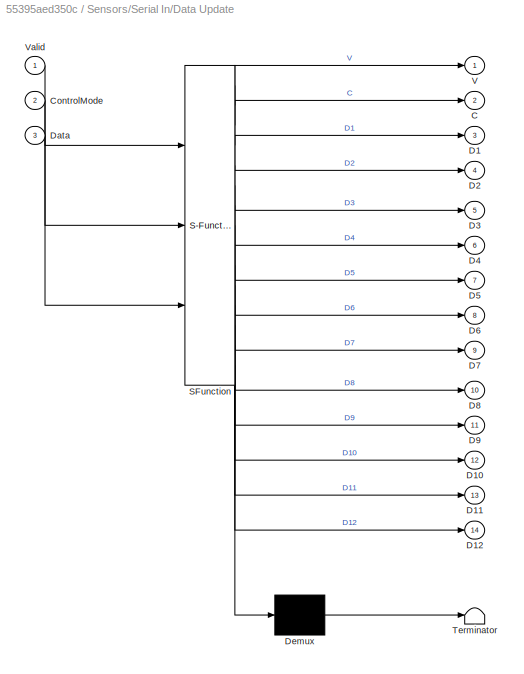
BLOCK [SubSystem] Sensors/Serial In/Data Update
  ErrorFcn = Stateflow.Translate.translate
  PermitHierarchicalResolution = ExplicitOnly
  Ports = [3, 14]
  RequestExecContextInheritance = off
  SFBlockType = MATLAB Function
  TreatAsAtomicUnit = on
BLOCK [Demux] Sensors/Serial In/Data Update/ Demux 
  Outputs = 1
  Ports = [1, 1]
BLOCK [S-Function] Sensors/Serial In/Data Update/ SFunction 
  EnableBusSupport = on
  FunctionName = sf_sfun
  PortCounts = [3 15]
  Ports = [3, 15]
  Tag = Stateflow S-Function RobotX_August9 3
BLOCK [Terminator] Sensors/Serial In/Data Update/ Terminator 
BLOCK [Outport] Sensors/Serial In/Data Update/C
  IconDisplay = Port number
  Port = 2
BLOCK [Inport] Sensors/Serial In/Data Update/ControlMode
  IconDisplay = Port number
  Port = 2
BLOCK [Outport] Sensors/Serial In/Data Update/D1
  IconDisplay = Port number
  Port = 3
BLOCK [Outport] Sensors/Serial In/Data Update/D10
  IconDisplay = Port number
  Port = 12
BLOCK [Outport] Sensors/Serial In/Data Update/D11
  IconDisplay = Port number
  Port = 13
BLOCK [Outport] Sensors/Serial In/Data Update/D12
  IconDisplay = Port number
  Port = 14
BLOCK [Outport] Sensors/Serial In/Data Update/D2
  IconDisplay = Port number
  Port = 4
BLOCK [Outport] Sensors/Serial In/Data Update/D3
  IconDisplay = Port number
  Port = 5
BLOCK [Outport] Sensors/Serial In/Data Update/D4
  IconDisplay = Port number
  Port = 6
BLOCK [Outport] Sensors/Serial In/Data Update/D5
  IconDisplay = Port number
  Port = 7
BLOCK [Outport] Sensors/Serial In/Data Update/D6
  IconDisplay = Port number
  Port = 8
BLOCK [Outport] Sensors/Serial In/Data Update/D7
  IconDisplay = Port number
  Port = 9
BLOCK [Outport] Sensors/Serial In/Data Update/D8
  IconDisplay = Port number
  Port = 10
BLOCK [Outport] Sensors/Serial In/Data Update/D9
  IconDisplay = Port number
  Port = 11
BLOCK [Inport] Sensors/Serial In/Data Update/Data
  IconDisplay = Port number
  Port = 3
BLOCK [Outport] Sensors/Serial In/Data Update/V
  IconDisplay = Port number
BLOCK [Inport] Sensors/Serial In/Data Update/Valid
  IconDisplay = Port number
BLOCK [SubSystem] Sensors/Serial In/Fake LCM
  Commented = on
  Ports = [0, 1]
  RequestExecContextInheritance = off
BLOCK [BusCreator] Sensors/Serial In/Fake LCM/Bus Creator1
  DisplayOption = bar
  Inputs = 3
  Ports = [3, 1]
BLOCK [BusCreator] Sensors/Serial In/Fake LCM/Bus Creator2
  DisplayOption = bar
  Inputs = 2
  Ports = [2, 1]
BLOCK [BusCreator] Sensors/Serial In/Fake LCM/Bus Creator3
  DisplayOption = bar
  Inputs = 3
  Ports = [3, 1]
BLOCK [BusCreator] Sensors/Serial In/Fake LCM/Bus Creator4
  DisplayOption = bar
  Inputs = 8
  Ports = [8, 1]
BLOCK [BusCreator] Sensors/Serial In/Fake LCM/Bus Creator5
  DisplayOption = bar
  Inputs = 2
  Ports = [2, 1]
BLOCK [BusCreator] Sensors/Serial In/Fake LCM/Bus Creator6
  DisplayOption = bar
  Inputs = 2
  Ports = [2, 1]
BLOCK [Constant] Sensors/Serial In/Fake LCM/Constant
  Value = 0
BLOCK [Constant] Sensors/Serial In/Fake LCM/Constant1
  Value = 0
BLOCK [Constant] Sensors/Serial In/Fake LCM/Constant10
  Value = 0
BLOCK [Constant] Sensors/Serial In/Fake LCM/Constant11
  Value = 0
BLOCK [Constant] Sensors/Serial In/Fake LCM/Constant12
  Value = 0
BLOCK [Constant] Sensors/Serial In/Fake LCM/Constant13
  Value = 0
BLOCK [Constant] Sensors/Serial In/Fake LCM/Constant14
  Value = 3
BLOCK [Constant] Sensors/Serial In/Fake LCM/Constant2
  Value = 0
BLOCK [Constant] Sensors/Serial In/Fake LCM/Constant3
  Value = 0
BLOCK [Constant] Sensors/Serial In/Fake LCM/Constant4
  Value = 0
BLOCK [Constant] Sensors/Serial In/Fake LCM/Constant5
  Value = 0
BLOCK [Constant] Sensors/Serial In/Fake LCM/Constant6
  Value = 0
BLOCK [Constant] Sensors/Serial In/Fake LCM/Constant7
  Value = 0
BLOCK [Constant] Sensors/Serial In/Fake LCM/Constant8
  Value = 0
BLOCK [Constant] Sensors/Serial In/Fake LCM/Constant9
  Value = 0
BLOCK [DataTypeConversion] Sensors/Serial In/Fake LCM/Data Type Conversion
  OutDataTypeStr = double
  RndMeth = Floor
  SaturateOnIntegerOverflow = off
BLOCK [Outport] Sensors/Serial In/Fake LCM/LCM Output
  IconDisplay = Port number
BLOCK [Ground] Sensors/Serial In/Ground1
BLOCK [Ground] Sensors/Serial In/Ground2
BLOCK [SubSystem] Sensors/Serial In/LIDAR Panda
  Ports = [1, 1]
  RequestExecContextInheritance = off
BLOCK [Reference] Sensors/Serial In/LIDAR Panda/ASCII Decode 2  REF=xpcseriallib/ASCII Decode 
  Ports = [1, 36]
  SourceBlock = xpcseriallib/ASCII Decode
  SourceType = ASCII Decode
  format = A:%d B:%d C:%d E:%d F:%d G:%d H:%d I:%d J:%d K:%d L:%d M:%d N:%d O:%d P:%d Q:%d R:%d S:%d T:%d U:%d V:%d W:%d X:%d C1:%d C2:%d C3:%d C4:%d P1:%f P2:%f P3:%f P4:%f I1:%d I2:%d I3:%d I4:%d \r\n
  nvars = 36
  vartypes = {}
BLOCK [BusCreator] Sensors/Serial In/LIDAR Panda/Bus Creator1
  DisplayOption = bar
  Inputs = 2
  Ports = [2, 1]
BLOCK [BusCreator] Sensors/Serial In/LIDAR Panda/Bus Creator2
  DisplayOption = bar
  Inputs = 3
  Ports = [3, 1]
BLOCK [BusCreator] Sensors/Serial In/LIDAR Panda/Bus Creator3
  DisplayOption = bar
  Inputs = 2
  Ports = [2, 1]
BLOCK [DataTypeConversion] Sensors/Serial In/LIDAR Panda/Data Type Conversion
  OutDataTypeStr = double
  RndMeth = Floor
  SaturateOnIntegerOverflow = off
BLOCK [DataTypeConversion] Sensors/Serial In/LIDAR Panda/Data Type Conversion1
  OutDataTypeStr = double
  RndMeth = Floor
  SaturateOnIntegerOverflow = off
BLOCK [DataTypeConversion] Sensors/Serial In/LIDAR Panda/Data Type Conversion2
  OutDataTypeStr = double
  RndMeth = Floor
  SaturateOnIntegerOverflow = off
BLOCK [DataTypeConversion] Sensors/Serial In/LIDAR Panda/Data Type Conversion3
  OutDataTypeStr = double
  RndMeth = Floor
  SaturateOnIntegerOverflow = off
BLOCK [Reference] Sensors/Serial In/LIDAR Panda/FIFO ASCII read   REF=xpcseriallib/FIFO ASCII read 
  Ports = [1, 1]
  SourceBlock = xpcseriallib/FIFO ASCII read
  SourceType = Asynchronous FIFO Block: reader
  enable = off
  header = {'A:'}
  hold = Zero output if no new data
  maxsize = 1024
  outputtype = 8 bit uint null terminated
  sampletime = 0.1
  term = [13 10]
BLOCK [Inport] Sensors/Serial In/LIDAR Panda/LIDAR Panda In
  IconDisplay = Port number
BLOCK [Outport] Sensors/Serial In/LIDAR Panda/LIDAR Panda Out
  IconDisplay = Port number
BLOCK [Mux] Sensors/Serial In/LIDAR Panda/Mux
  DisplayOption = bar
  Inputs = 12
  Ports = [12, 1]
BLOCK [Mux] Sensors/Serial In/LIDAR Panda/Mux1
  DisplayOption = bar
  Ports = [4, 1]
BLOCK [Mux] Sensors/Serial In/LIDAR Panda/Mux2
  DisplayOption = bar
  Inputs = 12
  Ports = [12, 1]
BLOCK [Mux] Sensors/Serial In/LIDAR Panda/Mux3
  DisplayOption = bar
  Ports = [4, 1]
BLOCK [Mux] Sensors/Serial In/LIDAR Panda/Mux4
  DisplayOption = bar
  Ports = [4, 1]
BLOCK [Outport] Sensors/Serial In/Serial In
  IconDisplay = Port number
BLOCK [Inport] Sensors/Serial In/Serial Out
  IconDisplay = Port number
BLOCK [Terminator] Sensors/Serial In/Terminator1
BLOCK [Terminator] Sensors/Serial In/Terminator9
BLOCK [Inport] Sensors/Serial Out
  IconDisplay = Port number
BLOCK [Reference] Setup  REF=speedgoatlib_IO102/Setup
  Ports = []
  SourceBlock = speedgoatlib_IO102/Setup
  SourceType = setup_IO102
  adChannel = 16
  adChannelMode = Multiple-channel (enter number of channels below)
  adCoupling = Differential
  cal = off
  daChannel = [1,2,3,4]
  daInitValue = [0]
  daReset = [1]
  diChannel = [1,2,3,4,5,6,7,8]
  doChannel = [1,2,3,4,5,6,7,8]
  doInitValue = [0]
  doReset = [1]
  group = Digital output setup
  id = 1
  pciSlot = -1
  range = +-5V
BLOCK [SubSystem] Sinks
  Ports = [1, 1]
  RequestExecContextInheritance = off
BLOCK [BusSelector] Sinks/Bus Selector
  OutputSignals = Outputs
  Ports = [1, 1]
BLOCK [Inport] Sinks/Output Signal
  IconDisplay = Port number
BLOCK [Outport] Sinks/Serial Outputs
  IconDisplay = Port number
BLOCK [SubSystem] Sinks/data log
  Commented = on
  Ports = [1]
  RequestExecContextInheritance = off
BLOCK [Inport] Sinks/data log/Output signal
  IconDisplay = Port number
BLOCK [Reference] Sinks/data log/Scope   REF=slrtlib/Displays and
Logging/Scope 
  Ports = [2]
  SourceBlock = slrtlib/Displays and\nLogging/Scope
  SourceType = xpcscopeblock
  autorestart = off
  autostart = on
  dynamicfilemode = off
  filename = data.dat
  formatstr = '%15.6f'
  grid = on
  interleave = 1
  maxwritefilesize = 512*1024^2
  mode = Lazy
  noprepostsamples = 0
  nosamples = 250
  scopeno = 1
  scopetype = File
  triggerlevel = 1
  triggermode = Signal triggering
  triggersample = 0
  triggerscope = 1
  triggersignal = 1
  triggerslope = Rising
  trigsignalfromport = on
  viewmode = Graphical redraw
  writesize = 512
  ylimits = [0,0]
BLOCK [UnitDelay] Unit Delay
  InputProcessing = Elements as channels (sample based)
  SampleTime = -1
ANNOTATION (root): Block Background Color Code: Black - Global Variables Magenta - Adjustable Parameters or Subsystems containing them Grey -High Importance Variables, should be double checked if changed Yellow - Low level I/O Cyan - FSM subsystem Light Blue - Conditional Selector Block Dark Green - Task Enablers Orange - Output Selectors Green - Signal Bussing Blocks Red - Logic blocks. Determine signals for output...<+28ch>
ANNOTATION Main FSM/Approach: Approach Target
ANNOTATION Main FSM/Dodge: Dodge Target
ANNOTATION Main FSM/Main Task Option: Main Task Options
ANNOTATION Main FSM/Park: Start Speed Gate
ANNOTATION Main FSM/Reverse: Maybe implement a PID for basic feedback control
ANNOTATION Parameters: Course options are: A, B and otherwise (for testing, must be one character)
ANNOTATION Sinks/data log: need to play with the boat to figure out how this works properly
LINE Main FSM/Approach/Approach:1 -> Main FSM/Approach/Finished:1
LINE Main FSM/Approach/Approach:2 -> Main FSM/Approach/Output Reassign:1
LINE Main FSM/Approach/Approach:3 -> Main FSM/Approach/Calculate Times:1
LINE Main FSM/Approach/Bus Selector:1 -> Main FSM/Approach/Approach:2
LINE Main FSM/Approach/Bus Selector:2 -> Main FSM/Approach/Approach:3
LINE Main FSM/Approach/Bus Selector:3 -> Main FSM/Approach/Approach:4
LINE Main FSM/Approach/Bus Selector:4 -> Main FSM/Approach/Approach:5
LINE Main FSM/Approach/Bus Selector:5 -> Main FSM/Approach/Approach:6
LINE Main FSM/Approach/Bus Selector:6 -> Main FSM/Approach/Calculate Times:2
LINE Main FSM/Approach/Calculate Times:1 -> Main FSM/Approach/Output Reassign:2
LINE Main FSM/Approach/Discrete-Time Integrator:1 -> Main FSM/Approach/Approach:1
LINE Main FSM/Approach/Enable:1 -> Main FSM/Approach/Discrete-Time Integrator:1
LINE Main FSM/Approach/Output Reassign/Bus Creator1:1 -> Main FSM/Approach/Output Reassign/Bus Creator4:1
LINE Main FSM/Approach/Output Reassign/Bus Creator4:1 -> Main FSM/Approach/Output Reassign/Outputs:1
LINE Main FSM/Approach/Output Reassign/Constant1:1 -> Main FSM/Approach/Output Reassign/Bus Creator1:2
LINE Main FSM/Approach/Output Reassign/Data:1 -> Main FSM/Approach/Output Reassign/Bus Creator1:3
LINE Main FSM/Approach/Output Reassign/Sensors:1 -> Main FSM/Approach/Output Reassign/Bus Creator4:2
LINE Main FSM/Approach/Output Reassign/Vaild:1 -> Main FSM/Approach/Output Reassign/Bus Creator1:1
LINE Main FSM/Approach/Output Reassign:1 -> Main FSM/Approach/Outputs:1
NET Main FSM/Approach/Sensors:1 -> Main FSM/Approach/Bus Selector:1, Main FSM/Approach/Output Reassign:3
LINE Main FSM/Approach:1 -> Main FSM/Multiport Switch:3
LINE Main FSM/Approach:2 -> Main FSM/Bus Creator:2
LINE Main FSM/Bus Creator:1 -> Main FSM/Unit Delay:1
LINE Main FSM/Bus Selector1:1 -> Main FSM/Main Enabler:3
LINE Main FSM/Bus Selector1:2 -> Main FSM/Main Enabler:4
LINE Main FSM/Bus Selector1:3 -> Main FSM/Main Enabler:5
LINE Main FSM/Bus Selector1:4 -> Main FSM/Main Enabler:6
LINE Main FSM/Bus Selector1:5 -> Main FSM/Main Enabler:7
LINE Main FSM/Bus Selector2:1 -> Main FSM/Main Enabler:2
LINE Main FSM/Dodge/Bus Selector:1 -> Main FSM/Dodge/Dodge:2
LINE Main FSM/Dodge/Bus Selector:2 -> Main FSM/Dodge/Dodge:3
LINE Main FSM/Dodge/Bus Selector:3 -> Main FSM/Dodge/Dodge:4
LINE Main FSM/Dodge/Bus Selector:4 -> Main FSM/Dodge/Dodge:5
LINE Main FSM/Dodge/Bus Selector:5 -> Main FSM/Dodge/Dodge:6
LINE Main FSM/Dodge/Bus Selector:6 -> Main FSM/Dodge/Calculate Times:2
LINE Main FSM/Dodge/Calculate Times:1 -> Main FSM/Dodge/Output Reassign:2
LINE Main FSM/Dodge/Discrete-Time Integrator:1 -> Main FSM/Dodge/Dodge:1
LINE Main FSM/Dodge/Dodge:1 -> Main FSM/Dodge/Finished:1
LINE Main FSM/Dodge/Dodge:2 -> Main FSM/Dodge/Output Reassign:1
LINE Main FSM/Dodge/Dodge:3 -> Main FSM/Dodge/Calculate Times:1
LINE Main FSM/Dodge/Enable:1 -> Main FSM/Dodge/Discrete-Time Integrator:1
LINE Main FSM/Dodge/Output Reassign/Bus Creator1:1 -> Main FSM/Dodge/Output Reassign/Bus Creator4:1
LINE Main FSM/Dodge/Output Reassign/Bus Creator4:1 -> Main FSM/Dodge/Output Reassign/Outputs:1
LINE Main FSM/Dodge/Output Reassign/Constant1:1 -> Main FSM/Dodge/Output Reassign/Bus Creator1:2
LINE Main FSM/Dodge/Output Reassign/Data:1 -> Main FSM/Dodge/Output Reassign/Bus Creator1:3
LINE Main FSM/Dodge/Output Reassign/Sensors:1 -> Main FSM/Dodge/Output Reassign/Bus Creator4:2
LINE Main FSM/Dodge/Output Reassign/Vaild:1 -> Main FSM/Dodge/Output Reassign/Bus Creator1:1
LINE Main FSM/Dodge/Output Reassign:1 -> Main FSM/Dodge/Outputs:1
NET Main FSM/Dodge/Sensors:1 -> Main FSM/Dodge/Bus Selector:1, Main FSM/Dodge/Output Reassign:3
LINE Main FSM/Dodge:1 -> Main FSM/Multiport Switch:6
LINE Main FSM/Dodge:2 -> Main FSM/Bus Creator:5
LINE Main FSM/Initialization/Compare To Constant:1 -> Main FSM/Initialization/Data Type Conversion:1
LINE Main FSM/Initialization/Data Type Conversion:1 -> Main FSM/Initialization/Finished:1
LINE Main FSM/Initialization/Discrete-Time Integrator:1 -> Main FSM/Initialization/Compare To Constant:1
LINE Main FSM/Initialization/Enable:1 -> Main FSM/Initialization/Discrete-Time Integrator:1
LINE Main FSM/Initialization/Output Heirarchy/Bus Creator1:1 -> Main FSM/Initialization/Output Heirarchy/Bus Creator4:1
LINE Main FSM/Initialization/Output Heirarchy/Bus Creator4:1 -> Main FSM/Initialization/Output Heirarchy/Outputs:1
LINE Main FSM/Initialization/Output Heirarchy/Constant1:1 -> Main FSM/Initialization/Output Heirarchy/Bus Creator1:2
LINE Main FSM/Initialization/Output Heirarchy/Constant2:1 -> Main FSM/Initialization/Output Heirarchy/Bus Creator1:3
LINE Main FSM/Initialization/Output Heirarchy/Constant:1 -> Main FSM/Initialization/Output Heirarchy/Bus Creator1:1
LINE Main FSM/Initialization/Output Heirarchy/Sensors:1 -> Main FSM/Initialization/Output Heirarchy/Bus Creator4:2
LINE Main FSM/Initialization/Output Heirarchy:1 -> Main FSM/Initialization/Outputs:1
LINE Main FSM/Initialization/Sensors:1 -> Main FSM/Initialization/Output Heirarchy:1
LINE Main FSM/Initialization:1 -> Main FSM/Multiport Switch:2
LINE Main FSM/Initialization:2 -> Main FSM/Bus Creator:1
NET Main FSM/Input:1 -> Main FSM/Approach:1, Main FSM/Bus Selector2:1, Main FSM/Dodge:1, Main FSM/Initialization:1, Main FSM/Park:1, Main FSM/RCHold:1, Main FSM/Reverse:1, Main FSM/Termination:1
LINE Main FSM/Main Enabler:1 -> Main FSM/Multiport Switch:1
LINE Main FSM/Main Enabler:2 -> Main FSM/Initialization:enable
LINE Main FSM/Main Enabler:3 -> Main FSM/Approach:enable
LINE Main FSM/Main Enabler:4 -> Main FSM/Park:enable
LINE Main FSM/Main Enabler:5 -> Main FSM/Reverse:enable
LINE Main FSM/Main Enabler:6 -> Main FSM/Dodge:enable
LINE Main FSM/Main Enabler:7 -> Main FSM/RCHold:enable
LINE Main FSM/Main Enabler:8 -> Main FSM/Termination:enable
LINE Main FSM/Main Task Option/Message Composer:1 -> Main FSM/Main Task Option/Option:1
LINE Main FSM/Main Task Option/Test Comms Option:1 -> Main FSM/Main Task Option/Message Composer:1
LINE Main FSM/Main Task Option:1 -> Main FSM/Main Enabler:1
LINE Main FSM/Multiport Switch:1 -> Main FSM/Output:1
LINE Main FSM/Park/Bus Selector:1 -> Main FSM/Park/Set Pose:1
LINE Main FSM/Park/Bus Selector:2 -> Main FSM/Park/Set Pose:2
LINE Main FSM/Park/Bus Selector:3 -> Main FSM/Park/Set Pose:3
LINE Main FSM/Park/Compare To Constant:1 -> Main FSM/Park/Data Type Conversion:1
LINE Main FSM/Park/Data Type Conversion:1 -> Main FSM/Park/Finished:1
LINE Main FSM/Park/Discrete-Time Integrator:1 -> Main FSM/Park/Compare To Constant:1
LINE Main FSM/Park/Enable:1 -> Main FSM/Park/Discrete-Time Integrator:1
LINE Main FSM/Park/Output Heirarchy/Bus Creator1:1 -> Main FSM/Park/Output Heirarchy/Bus Creator4:1
LINE Main FSM/Park/Output Heirarchy/Bus Creator4:1 -> Main FSM/Park/Output Heirarchy/Outputs:1
LINE Main FSM/Park/Output Heirarchy/Constant1:1 -> Main FSM/Park/Output Heirarchy/Bus Creator1:2
LINE Main FSM/Park/Output Heirarchy/Constant2:1 -> Main FSM/Park/Output Heirarchy/Data Type Conversion:1
LINE Main FSM/Park/Output Heirarchy/Data Type Conversion:1 -> Main FSM/Park/Output Heirarchy/Bus Creator1:1
LINE Main FSM/Park/Output Heirarchy/Data:1 -> Main FSM/Park/Output Heirarchy/Bus Creator1:3
LINE Main FSM/Park/Output Heirarchy/Sensors:1 -> Main FSM/Park/Output Heirarchy/Bus Creator4:2
LINE Main FSM/Park/Output Heirarchy:1 -> Main FSM/Park/Outputs:1
NET Main FSM/Park/Sensors:1 -> Main FSM/Park/Bus Selector:1, Main FSM/Park/Output Heirarchy:2
LINE Main FSM/Park/Set Pose:1 -> Main FSM/Park/Output Heirarchy:1
LINE Main FSM/Park:1 -> Main FSM/Multiport Switch:4
LINE Main FSM/Park:2 -> Main FSM/Bus Creator:3
LINE Main FSM/RCHold/Bus Selector:1 -> Main FSM/RCHold/Set Pose:1
LINE Main FSM/RCHold/Bus Selector:2 -> Main FSM/RCHold/Set Pose:2
LINE Main FSM/RCHold/Bus Selector:3 -> Main FSM/RCHold/Set Pose:3
LINE Main FSM/RCHold/Direct Control/Bus Creator1:1 -> Main FSM/RCHold/Direct Control/Bus Creator4:1
LINE Main FSM/RCHold/Direct Control/Bus Creator4:1 -> Main FSM/RCHold/Direct Control/Outputs:1
LINE Main FSM/RCHold/Direct Control/Constant1:1 -> Main FSM/RCHold/Direct Control/Bus Creator1:2
LINE Main FSM/RCHold/Direct Control/Constant2:1 -> Main FSM/RCHold/Direct Control/Bus Creator1:3
LINE Main FSM/RCHold/Direct Control/Constant:1 -> Main FSM/RCHold/Direct Control/Bus Creator1:1
LINE Main FSM/RCHold/Direct Control/Sensors:1 -> Main FSM/RCHold/Direct Control/Bus Creator4:2
LINE Main FSM/RCHold/Output Heirarchy/Bus Creator1:1 -> Main FSM/RCHold/Output Heirarchy/Bus Creator4:1
LINE Main FSM/RCHold/Output Heirarchy/Bus Creator4:1 -> Main FSM/RCHold/Output Heirarchy/Outputs:1
LINE Main FSM/RCHold/Output Heirarchy/Constant1:1 -> Main FSM/RCHold/Output Heirarchy/Bus Creator1:2
LINE Main FSM/RCHold/Output Heirarchy/Constant2:1 -> Main FSM/RCHold/Output Heirarchy/Data Type Conversion:1
LINE Main FSM/RCHold/Output Heirarchy/Data Type Conversion:1 -> Main FSM/RCHold/Output Heirarchy/Bus Creator1:1
LINE Main FSM/RCHold/Output Heirarchy/Data:1 -> Main FSM/RCHold/Output Heirarchy/Bus Creator1:3
LINE Main FSM/RCHold/Output Heirarchy/Sensors:1 -> Main FSM/RCHold/Output Heirarchy/Bus Creator4:2
LINE Main FSM/RCHold/Output Heirarchy:1 -> Main FSM/RCHold/Outputs:1
NET Main FSM/RCHold/Sensors:1 -> Main FSM/RCHold/Bus Selector:1, Main FSM/RCHold/Output Heirarchy:2
LINE Main FSM/RCHold/Set Pose:1 -> Main FSM/RCHold/Output Heirarchy:1
LINE Main FSM/RCHold:1 -> Main FSM/Multiport Switch:7
LINE Main FSM/Reverse/Compare To Constant:1 -> Main FSM/Reverse/Data Type Conversion:1
LINE Main FSM/Reverse/Data Type Conversion:1 -> Main FSM/Reverse/Finished:1
LINE Main FSM/Reverse/Discrete-Time Integrator:1 -> Main FSM/Reverse/Compare To Constant:1
LINE Main FSM/Reverse/Enable:1 -> Main FSM/Reverse/Discrete-Time Integrator:1
LINE Main FSM/Reverse/Output Heirarchy/Bus Creator1:1 -> Main FSM/Reverse/Output Heirarchy/Bus Creator4:1
LINE Main FSM/Reverse/Output Heirarchy/Bus Creator4:1 -> Main FSM/Reverse/Output Heirarchy/Outputs:1
LINE Main FSM/Reverse/Output Heirarchy/Constant1:1 -> Main FSM/Reverse/Output Heirarchy/Bus Creator1:2
LINE Main FSM/Reverse/Output Heirarchy/Constant2:1 -> Main FSM/Reverse/Output Heirarchy/Bus Creator1:3
LINE Main FSM/Reverse/Output Heirarchy/Constant:1 -> Main FSM/Reverse/Output Heirarchy/Bus Creator1:1
LINE Main FSM/Reverse/Output Heirarchy/Sensors:1 -> Main FSM/Reverse/Output Heirarchy/Bus Creator4:2
LINE Main FSM/Reverse/Output Heirarchy:1 -> Main FSM/Reverse/Outputs:1
LINE Main FSM/Reverse/Sensors:1 -> Main FSM/Reverse/Output Heirarchy:1
LINE Main FSM/Reverse:1 -> Main FSM/Multiport Switch:5
LINE Main FSM/Reverse:2 -> Main FSM/Bus Creator:4
LINE Main FSM/Termination/Bus Selector:1 -> Main FSM/Termination/Set Pose:1
LINE Main FSM/Termination/Bus Selector:2 -> Main FSM/Termination/Set Pose:2
LINE Main FSM/Termination/Bus Selector:3 -> Main FSM/Termination/Set Pose:3
LINE Main FSM/Termination/Direct Control/Bus Creator1:1 -> Main FSM/Termination/Direct Control/Bus Creator4:1
LINE Main FSM/Termination/Direct Control/Bus Creator4:1 -> Main FSM/Termination/Direct Control/Outputs:1
LINE Main FSM/Termination/Direct Control/Constant1:1 -> Main FSM/Termination/Direct Control/Bus Creator1:2
LINE Main FSM/Termination/Direct Control/Constant2:1 -> Main FSM/Termination/Direct Control/Bus Creator1:3
LINE Main FSM/Termination/Direct Control/Constant:1 -> Main FSM/Termination/Direct Control/Bus Creator1:1
LINE Main FSM/Termination/Direct Control/Sensors:1 -> Main FSM/Termination/Direct Control/Bus Creator4:2
LINE Main FSM/Termination/Output Heirarchy/Bus Creator1:1 -> Main FSM/Termination/Output Heirarchy/Bus Creator4:1
LINE Main FSM/Termination/Output Heirarchy/Bus Creator4:1 -> Main FSM/Termination/Output Heirarchy/Outputs:1
LINE Main FSM/Termination/Output Heirarchy/Constant1:1 -> Main FSM/Termination/Output Heirarchy/Bus Creator1:2
LINE Main FSM/Termination/Output Heirarchy/Constant2:1 -> Main FSM/Termination/Output Heirarchy/Data Type Conversion:1
LINE Main FSM/Termination/Output Heirarchy/Data Type Conversion:1 -> Main FSM/Termination/Output Heirarchy/Bus Creator1:1
LINE Main FSM/Termination/Output Heirarchy/Data:1 -> Main FSM/Termination/Output Heirarchy/Bus Creator1:3
LINE Main FSM/Termination/Output Heirarchy/Sensors:1 -> Main FSM/Termination/Output Heirarchy/Bus Creator4:2
LINE Main FSM/Termination/Output Heirarchy:1 -> Main FSM/Termination/Outputs:1
NET Main FSM/Termination/Sensors:1 -> Main FSM/Termination/Bus Selector:1, Main FSM/Termination/Output Heirarchy:2
LINE Main FSM/Termination/Set Pose:1 -> Main FSM/Termination/Output Heirarchy:1
LINE Main FSM/Termination:1 -> Main FSM/Multiport Switch:8
LINE Main FSM/Unit Delay:1 -> Main FSM/Bus Selector1:1
LINE Main FSM:1 -> Sinks:1
LINE Parameters/CourseName:1 -> Parameters/Write:1
LINE Parameters/GPS Points/Acoustic Location A:1 -> Parameters/GPS Points/GPS Selector:7
LINE Parameters/GPS Points/Acoustic Location B:1 -> Parameters/GPS Points/GPS Selector:13
LINE Parameters/GPS Points/Acoustic Location T:1 -> Parameters/GPS Points/GPS Selector:19
LINE Parameters/GPS Points/Data Store Read:1 -> Parameters/GPS Points/GPS Selector:1
LINE Parameters/GPS Points/Dock A:1 -> Parameters/GPS Points/GPS Selector:8
LINE Parameters/GPS Points/Dock B:1 -> Parameters/GPS Points/GPS Selector:14
LINE Parameters/GPS Points/Dock T:1 -> Parameters/GPS Points/GPS Selector:20
LINE Parameters/GPS Points/GPS Selector:1 -> Parameters/GPS Points/Data Store Write:1
LINE Parameters/GPS Points/GPS Selector:2 -> Parameters/GPS Points/Data Store Write1:1
LINE Parameters/GPS Points/GPS Selector:3 -> Parameters/GPS Points/Data Store Write2:1
LINE Parameters/GPS Points/GPS Selector:4 -> Parameters/GPS Points/Data Store Write3:1
LINE Parameters/GPS Points/GPS Selector:5 -> Parameters/GPS Points/Data Store Write4:1
LINE Parameters/GPS Points/GPS Selector:6 -> Parameters/GPS Points/Data Store Write5:1
LINE Parameters/GPS Points/GPS Selector:7 -> Parameters/GPS Points/Data Store Write6:1
LINE Parameters/GPS Points/Obst Nav End A:1 -> Parameters/GPS Points/GPS Selector:6
LINE Parameters/GPS Points/Obst Nav End B:1 -> Parameters/GPS Points/GPS Selector:12
LINE Parameters/GPS Points/Obst Nav End T:1 -> Parameters/GPS Points/GPS Selector:18
LINE Parameters/GPS Points/Obst Nav Start A:1 -> Parameters/GPS Points/GPS Selector:5
LINE Parameters/GPS Points/Obst Nav Start B:1 -> Parameters/GPS Points/GPS Selector:11
LINE Parameters/GPS Points/Obst Nav Start T:1 -> Parameters/GPS Points/GPS Selector:17
LINE Parameters/GPS Points/Return:1 -> Parameters/GPS Points/GPS Selector:2
LINE Parameters/GPS Points/SpeedGate A:1 -> Parameters/GPS Points/GPS Selector:3
LINE Parameters/GPS Points/SpeedGate B:1 -> Parameters/GPS Points/GPS Selector:9
LINE Parameters/GPS Points/SpeedGate T:1 -> Parameters/GPS Points/GPS Selector:15
LINE Parameters/GPS Points/Tramsition Waypoint T:1 -> Parameters/GPS Points/GPS Selector:16
LINE Parameters/GPS Points/Transition Waypoint A:1 -> Parameters/GPS Points/GPS Selector:4
LINE Parameters/GPS Points/Transition Waypoint B:1 -> Parameters/GPS Points/GPS Selector:10
LINE Sensors/Serial In/ Raspberry Pi LCM/ASCII Decode 6:1 -> Sensors/Serial In/ Raspberry Pi LCM/Bus Creator1:1
LINE Sensors/Serial In/ Raspberry Pi LCM/ASCII Decode 6:10 -> Sensors/Serial In/ Raspberry Pi LCM/Bus Creator5:2
LINE Sensors/Serial In/ Raspberry Pi LCM/ASCII Decode 6:11 -> Sensors/Serial In/ Raspberry Pi LCM/Bus Creator6:1
LINE Sensors/Serial In/ Raspberry Pi LCM/ASCII Decode 6:12 -> Sensors/Serial In/ Raspberry Pi LCM/Bus Creator6:2
LINE Sensors/Serial In/ Raspberry Pi LCM/ASCII Decode 6:13 -> Sensors/Serial In/ Raspberry Pi LCM/Bus Creator4:6
LINE Sensors/Serial In/ Raspberry Pi LCM/ASCII Decode 6:14 -> Sensors/Serial In/ Raspberry Pi LCM/Bus Creator4:7
LINE Sensors/Serial In/ Raspberry Pi LCM/ASCII Decode 6:15 -> Sensors/Serial In/ Raspberry Pi LCM/Data Type Conversion:1
LINE Sensors/Serial In/ Raspberry Pi LCM/ASCII Decode 6:2 -> Sensors/Serial In/ Raspberry Pi LCM/Bus Creator1:2
LINE Sensors/Serial In/ Raspberry Pi LCM/ASCII Decode 6:3 -> Sensors/Serial In/ Raspberry Pi LCM/Bus Creator1:3
LINE Sensors/Serial In/ Raspberry Pi LCM/ASCII Decode 6:4 -> Sensors/Serial In/ Raspberry Pi LCM/Bus Creator2:1
LINE Sensors/Serial In/ Raspberry Pi LCM/ASCII Decode 6:5 -> Sensors/Serial In/ Raspberry Pi LCM/Bus Creator2:2
LINE Sensors/Serial In/ Raspberry Pi LCM/ASCII Decode 6:6 -> Sensors/Serial In/ Raspberry Pi LCM/Bus Creator3:1
LINE Sensors/Serial In/ Raspberry Pi LCM/ASCII Decode 6:7 -> Sensors/Serial In/ Raspberry Pi LCM/Bus Creator3:2
LINE Sensors/Serial In/ Raspberry Pi LCM/ASCII Decode 6:8 -> Sensors/Serial In/ Raspberry Pi LCM/Bus Creator3:3
LINE Sensors/Serial In/ Raspberry Pi LCM/ASCII Decode 6:9 -> Sensors/Serial In/ Raspberry Pi LCM/Bus Creator5:1
LINE Sensors/Serial In/ Raspberry Pi LCM/Bus Creator1:1 -> Sensors/Serial In/ Raspberry Pi LCM/Bus Creator4:1
LINE Sensors/Serial In/ Raspberry Pi LCM/Bus Creator2:1 -> Sensors/Serial In/ Raspberry Pi LCM/Bus Creator4:2
LINE Sensors/Serial In/ Raspberry Pi LCM/Bus Creator3:1 -> Sensors/Serial In/ Raspberry Pi LCM/Bus Creator4:3
LINE Sensors/Serial In/ Raspberry Pi LCM/Bus Creator4:1 -> Sensors/Serial In/ Raspberry Pi LCM/LCM Output:1
LINE Sensors/Serial In/ Raspberry Pi LCM/Bus Creator5:1 -> Sensors/Serial In/ Raspberry Pi LCM/Bus Creator4:4
LINE Sensors/Serial In/ Raspberry Pi LCM/Bus Creator6:1 -> Sensors/Serial In/ Raspberry Pi LCM/Bus Creator4:5
LINE Sensors/Serial In/ Raspberry Pi LCM/Data Type Conversion:1 -> Sensors/Serial In/ Raspberry Pi LCM/Bus Creator4:8
LINE Sensors/Serial In/ Raspberry Pi LCM/FIFO ASCII read 1:1 -> Sensors/Serial In/ Raspberry Pi LCM/ASCII Decode 6:1
LINE Sensors/Serial In/ Raspberry Pi LCM/LCM Input:1 -> Sensors/Serial In/ Raspberry Pi LCM/FIFO ASCII read 1:1
LINE Sensors/Serial In/ Raspberry Pi LCM:1 -> Sensors/Serial In/Bus Creator:1
LINE Sensors/Serial In/ASCII Encode 2:1 -> Sensors/Serial In/Baseboard Serial F1:1
LINE Sensors/Serial In/ASCII Encode 3:1 -> Sensors/Serial In/Baseboard Serial F:1
LINE Sensors/Serial In/Baseboard Serial F1:1 -> Sensors/Serial In/LIDAR Panda:1
LINE Sensors/Serial In/Baseboard Serial F1:2 -> Sensors/Serial In/Terminator1:1
LINE Sensors/Serial In/Baseboard Serial F:1 -> Sensors/Serial In/ Raspberry Pi LCM:1
LINE Sensors/Serial In/Baseboard Serial F:2 -> Sensors/Serial In/Terminator9:1
LINE Sensors/Serial In/Bus Creator:1 -> Sensors/Serial In/Serial In:1
LINE Sensors/Serial In/Bus Selector:1 -> Sensors/Serial In/Data Update:1
LINE Sensors/Serial In/Bus Selector:2 -> Sensors/Serial In/Data Update:2
LINE Sensors/Serial In/Bus Selector:3 -> Sensors/Serial In/Data Update:3
LINE Sensors/Serial In/Constant:1 -> Sensors/Serial In/ASCII Encode 2:1
LINE Sensors/Serial In/Data Update:1 -> Sensors/Serial In/ASCII Encode 3:1
LINE Sensors/Serial In/Data Update:10 -> Sensors/Serial In/ASCII Encode 3:10
LINE Sensors/Serial In/Data Update:11 -> Sensors/Serial In/ASCII Encode 3:11
LINE Sensors/Serial In/Data Update:12 -> Sensors/Serial In/ASCII Encode 3:12
LINE Sensors/Serial In/Data Update:13 -> Sensors/Serial In/ASCII Encode 3:13
LINE Sensors/Serial In/Data Update:14 -> Sensors/Serial In/ASCII Encode 3:14
LINE Sensors/Serial In/Data Update:2 -> Sensors/Serial In/ASCII Encode 3:2
LINE Sensors/Serial In/Data Update:3 -> Sensors/Serial In/ASCII Encode 3:3
LINE Sensors/Serial In/Data Update:4 -> Sensors/Serial In/ASCII Encode 3:4
LINE Sensors/Serial In/Data Update:5 -> Sensors/Serial In/ASCII Encode 3:5
LINE Sensors/Serial In/Data Update:6 -> Sensors/Serial In/ASCII Encode 3:6
LINE Sensors/Serial In/Data Update:7 -> Sensors/Serial In/ASCII Encode 3:7
LINE Sensors/Serial In/Data Update:8 -> Sensors/Serial In/ASCII Encode 3:8
LINE Sensors/Serial In/Data Update:9 -> Sensors/Serial In/ASCII Encode 3:9
LINE Sensors/Serial In/Fake LCM/Bus Creator1:1 -> Sensors/Serial In/Fake LCM/Bus Creator4:1
LINE Sensors/Serial In/Fake LCM/Bus Creator2:1 -> Sensors/Serial In/Fake LCM/Bus Creator4:2
LINE Sensors/Serial In/Fake LCM/Bus Creator3:1 -> Sensors/Serial In/Fake LCM/Bus Creator4:3
LINE Sensors/Serial In/Fake LCM/Bus Creator4:1 -> Sensors/Serial In/Fake LCM/LCM Output:1
LINE Sensors/Serial In/Fake LCM/Bus Creator5:1 -> Sensors/Serial In/Fake LCM/Bus Creator4:4
LINE Sensors/Serial In/Fake LCM/Bus Creator6:1 -> Sensors/Serial In/Fake LCM/Bus Creator4:5
LINE Sensors/Serial In/Fake LCM/Constant10:1 -> Sensors/Serial In/Fake LCM/Bus Creator6:1
LINE Sensors/Serial In/Fake LCM/Constant11:1 -> Sensors/Serial In/Fake LCM/Bus Creator6:2
LINE Sensors/Serial In/Fake LCM/Constant12:1 -> Sensors/Serial In/Fake LCM/Bus Creator4:6
LINE Sensors/Serial In/Fake LCM/Constant13:1 -> Sensors/Serial In/Fake LCM/Bus Creator4:7
LINE Sensors/Serial In/Fake LCM/Constant14:1 -> Sensors/Serial In/Fake LCM/Data Type Conversion:1
LINE Sensors/Serial In/Fake LCM/Constant1:1 -> Sensors/Serial In/Fake LCM/Bus Creator1:2
LINE Sensors/Serial In/Fake LCM/Constant2:1 -> Sensors/Serial In/Fake LCM/Bus Creator1:3
LINE Sensors/Serial In/Fake LCM/Constant3:1 -> Sensors/Serial In/Fake LCM/Bus Creator2:1
LINE Sensors/Serial In/Fake LCM/Constant4:1 -> Sensors/Serial In/Fake LCM/Bus Creator2:2
LINE Sensors/Serial In/Fake LCM/Constant5:1 -> Sensors/Serial In/Fake LCM/Bus Creator3:1
LINE Sensors/Serial In/Fake LCM/Constant6:1 -> Sensors/Serial In/Fake LCM/Bus Creator3:2
LINE Sensors/Serial In/Fake LCM/Constant7:1 -> Sensors/Serial In/Fake LCM/Bus Creator3:3
LINE Sensors/Serial In/Fake LCM/Constant8:1 -> Sensors/Serial In/Fake LCM/Bus Creator5:1
LINE Sensors/Serial In/Fake LCM/Constant9:1 -> Sensors/Serial In/Fake LCM/Bus Creator5:2
LINE Sensors/Serial In/Fake LCM/Constant:1 -> Sensors/Serial In/Fake LCM/Bus Creator1:1
LINE Sensors/Serial In/Fake LCM/Data Type Conversion:1 -> Sensors/Serial In/Fake LCM/Bus Creator4:8
LINE Sensors/Serial In/Ground1:1 -> Sensors/Serial In/Baseboard Serial F:2
LINE Sensors/Serial In/Ground2:1 -> Sensors/Serial In/Baseboard Serial F1:2
LINE Sensors/Serial In/LIDAR Panda/ASCII Decode 2:1 -> Sensors/Serial In/LIDAR Panda/Mux:1
LINE Sensors/Serial In/LIDAR Panda/ASCII Decode 2:10 -> Sensors/Serial In/LIDAR Panda/Mux:10
LINE Sensors/Serial In/LIDAR Panda/ASCII Decode 2:11 -> Sensors/Serial In/LIDAR Panda/Mux:11
LINE Sensors/Serial In/LIDAR Panda/ASCII Decode 2:12 -> Sensors/Serial In/LIDAR Panda/Mux:12
LINE Sensors/Serial In/LIDAR Panda/ASCII Decode 2:13 -> Sensors/Serial In/LIDAR Panda/Mux2:1
LINE Sensors/Serial In/LIDAR Panda/ASCII Decode 2:14 -> Sensors/Serial In/LIDAR Panda/Mux2:2
LINE Sensors/Serial In/LIDAR Panda/ASCII Decode 2:15 -> Sensors/Serial In/LIDAR Panda/Mux2:3
LINE Sensors/Serial In/LIDAR Panda/ASCII Decode 2:16 -> Sensors/Serial In/LIDAR Panda/Mux2:4
LINE Sensors/Serial In/LIDAR Panda/ASCII Decode 2:17 -> Sensors/Serial In/LIDAR Panda/Mux2:5
LINE Sensors/Serial In/LIDAR Panda/ASCII Decode 2:18 -> Sensors/Serial In/LIDAR Panda/Mux2:6
LINE Sensors/Serial In/LIDAR Panda/ASCII Decode 2:19 -> Sensors/Serial In/LIDAR Panda/Mux2:7
LINE Sensors/Serial In/LIDAR Panda/ASCII Decode 2:2 -> Sensors/Serial In/LIDAR Panda/Mux:2
LINE Sensors/Serial In/LIDAR Panda/ASCII Decode 2:20 -> Sensors/Serial In/LIDAR Panda/Mux2:8
LINE Sensors/Serial In/LIDAR Panda/ASCII Decode 2:21 -> Sensors/Serial In/LIDAR Panda/Mux2:9
LINE Sensors/Serial In/LIDAR Panda/ASCII Decode 2:22 -> Sensors/Serial In/LIDAR Panda/Mux2:10
LINE Sensors/Serial In/LIDAR Panda/ASCII Decode 2:23 -> Sensors/Serial In/LIDAR Panda/Mux2:11
LINE Sensors/Serial In/LIDAR Panda/ASCII Decode 2:24 -> Sensors/Serial In/LIDAR Panda/Mux2:12
LINE Sensors/Serial In/LIDAR Panda/ASCII Decode 2:25 -> Sensors/Serial In/LIDAR Panda/Mux1:1
LINE Sensors/Serial In/LIDAR Panda/ASCII Decode 2:26 -> Sensors/Serial In/LIDAR Panda/Mux1:2
LINE Sensors/Serial In/LIDAR Panda/ASCII Decode 2:27 -> Sensors/Serial In/LIDAR Panda/Mux1:3
LINE Sensors/Serial In/LIDAR Panda/ASCII Decode 2:28 -> Sensors/Serial In/LIDAR Panda/Mux1:4
LINE Sensors/Serial In/LIDAR Panda/ASCII Decode 2:29 -> Sensors/Serial In/LIDAR Panda/Mux3:1
LINE Sensors/Serial In/LIDAR Panda/ASCII Decode 2:3 -> Sensors/Serial In/LIDAR Panda/Mux:3
LINE Sensors/Serial In/LIDAR Panda/ASCII Decode 2:30 -> Sensors/Serial In/LIDAR Panda/Mux3:2
LINE Sensors/Serial In/LIDAR Panda/ASCII Decode 2:31 -> Sensors/Serial In/LIDAR Panda/Mux3:3
LINE Sensors/Serial In/LIDAR Panda/ASCII Decode 2:32 -> Sensors/Serial In/LIDAR Panda/Mux3:4
LINE Sensors/Serial In/LIDAR Panda/ASCII Decode 2:33 -> Sensors/Serial In/LIDAR Panda/Mux4:1
LINE Sensors/Serial In/LIDAR Panda/ASCII Decode 2:34 -> Sensors/Serial In/LIDAR Panda/Mux4:2
LINE Sensors/Serial In/LIDAR Panda/ASCII Decode 2:35 -> Sensors/Serial In/LIDAR Panda/Mux4:3
LINE Sensors/Serial In/LIDAR Panda/ASCII Decode 2:36 -> Sensors/Serial In/LIDAR Panda/Mux4:4
LINE Sensors/Serial In/LIDAR Panda/ASCII Decode 2:4 -> Sensors/Serial In/LIDAR Panda/Mux:4
LINE Sensors/Serial In/LIDAR Panda/ASCII Decode 2:5 -> Sensors/Serial In/LIDAR Panda/Mux:5
LINE Sensors/Serial In/LIDAR Panda/ASCII Decode 2:6 -> Sensors/Serial In/LIDAR Panda/Mux:6
LINE Sensors/Serial In/LIDAR Panda/ASCII Decode 2:7 -> Sensors/Serial In/LIDAR Panda/Mux:7
LINE Sensors/Serial In/LIDAR Panda/ASCII Decode 2:8 -> Sensors/Serial In/LIDAR Panda/Mux:8
LINE Sensors/Serial In/LIDAR Panda/ASCII Decode 2:9 -> Sensors/Serial In/LIDAR Panda/Mux:9
LINE Sensors/Serial In/LIDAR Panda/Bus Creator1:1 -> Sensors/Serial In/LIDAR Panda/Bus Creator3:1
LINE Sensors/Serial In/LIDAR Panda/Bus Creator2:1 -> Sensors/Serial In/LIDAR Panda/Bus Creator3:2
LINE Sensors/Serial In/LIDAR Panda/Bus Creator3:1 -> Sensors/Serial In/LIDAR Panda/LIDAR Panda Out:1
LINE Sensors/Serial In/LIDAR Panda/Data Type Conversion1:1 -> Sensors/Serial In/LIDAR Panda/Bus Creator1:2
LINE Sensors/Serial In/LIDAR Panda/Data Type Conversion2:1 -> Sensors/Serial In/LIDAR Panda/Bus Creator2:1
LINE Sensors/Serial In/LIDAR Panda/Data Type Conversion3:1 -> Sensors/Serial In/LIDAR Panda/Bus Creator2:3
LINE Sensors/Serial In/LIDAR Panda/Data Type Conversion:1 -> Sensors/Serial In/LIDAR Panda/Bus Creator1:1
LINE Sensors/Serial In/LIDAR Panda/FIFO ASCII read :1 -> Sensors/Serial In/LIDAR Panda/ASCII Decode 2:1
LINE Sensors/Serial In/LIDAR Panda/LIDAR Panda In:1 -> Sensors/Serial In/LIDAR Panda/FIFO ASCII read :1
LINE Sensors/Serial In/LIDAR Panda/Mux1:1 -> Sensors/Serial In/LIDAR Panda/Data Type Conversion2:1
LINE Sensors/Serial In/LIDAR Panda/Mux2:1 -> Sensors/Serial In/LIDAR Panda/Data Type Conversion1:1
LINE Sensors/Serial In/LIDAR Panda/Mux3:1 -> Sensors/Serial In/LIDAR Panda/Bus Creator2:2
LINE Sensors/Serial In/LIDAR Panda/Mux4:1 -> Sensors/Serial In/LIDAR Panda/Data Type Conversion3:1
LINE Sensors/Serial In/LIDAR Panda/Mux:1 -> Sensors/Serial In/LIDAR Panda/Data Type Conversion:1
LINE Sensors/Serial In/LIDAR Panda:1 -> Sensors/Serial In/Bus Creator:2
LINE Sensors/Serial In/Serial Out:1 -> Sensors/Serial In/Bus Selector:1
LINE Sensors/Serial In:1 -> Sensors/Input Signals:1
LINE Sensors/Serial Out:1 -> Sensors/Serial In:1
LINE Sensors:1 -> Main FSM:1
LINE Sinks/Bus Selector:1 -> Sinks/Serial Outputs:1
LINE Sinks/Output Signal:1 -> Sinks/Bus Selector:1
LINE Sinks:1 -> Unit Delay:1
LINE Unit Delay:1 -> Sensors:1
note: NET lines group one-source signal fan-out (src -> all destinations, sorted); 1:1 wires keep LINE
